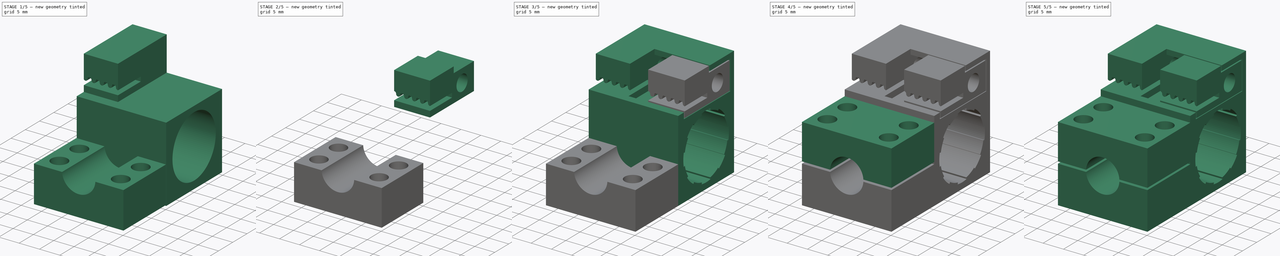
[diagram: build sequence overview — one tinted view per stage of 5, left to right]
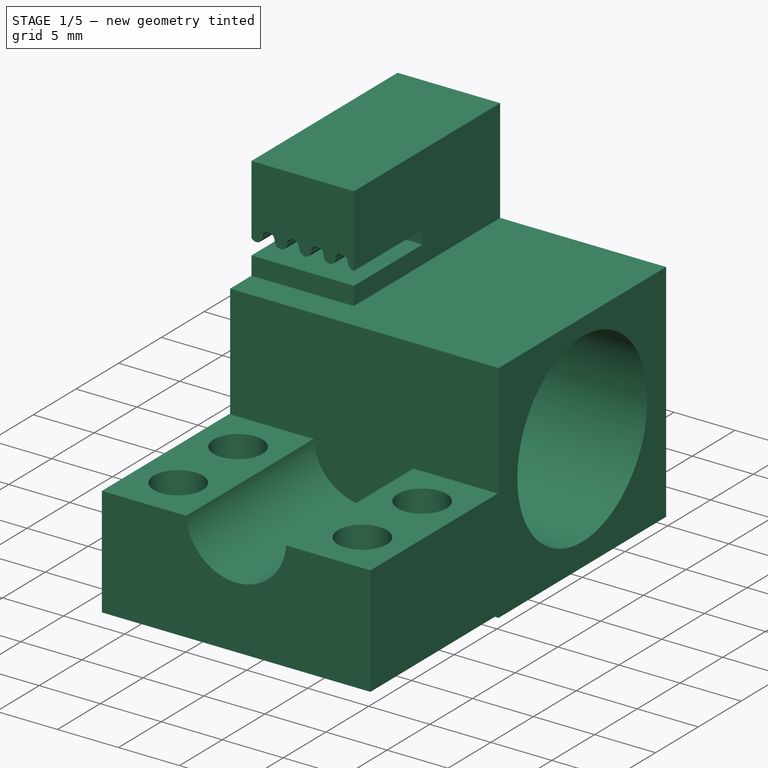
[diagram: stage 1 of 5 — iso view after this stage's code; geometry added in this stage tinted green]
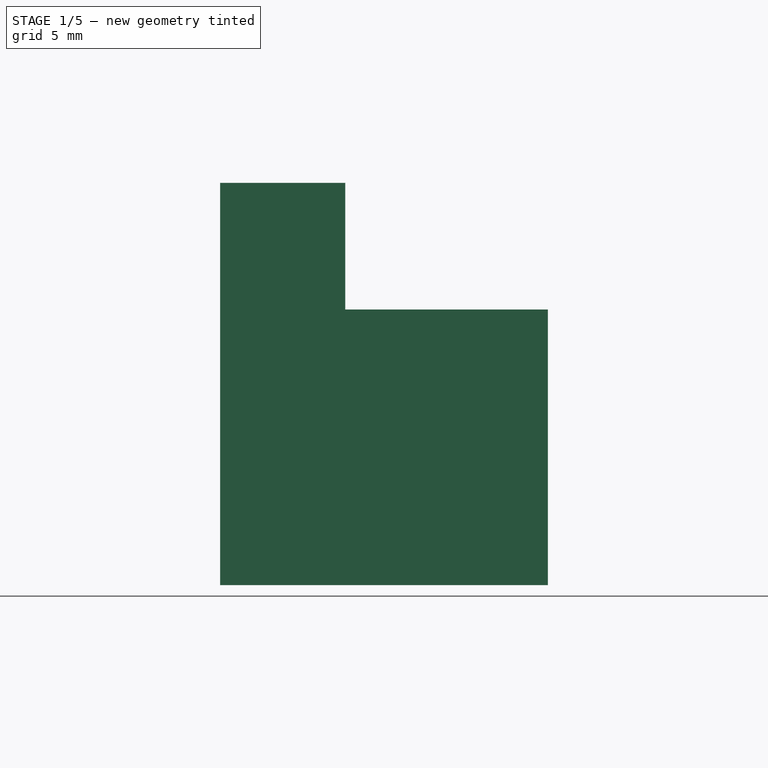
[diagram: stage 1 of 5 — front view after this stage's code; geometry added in this stage tinted green]
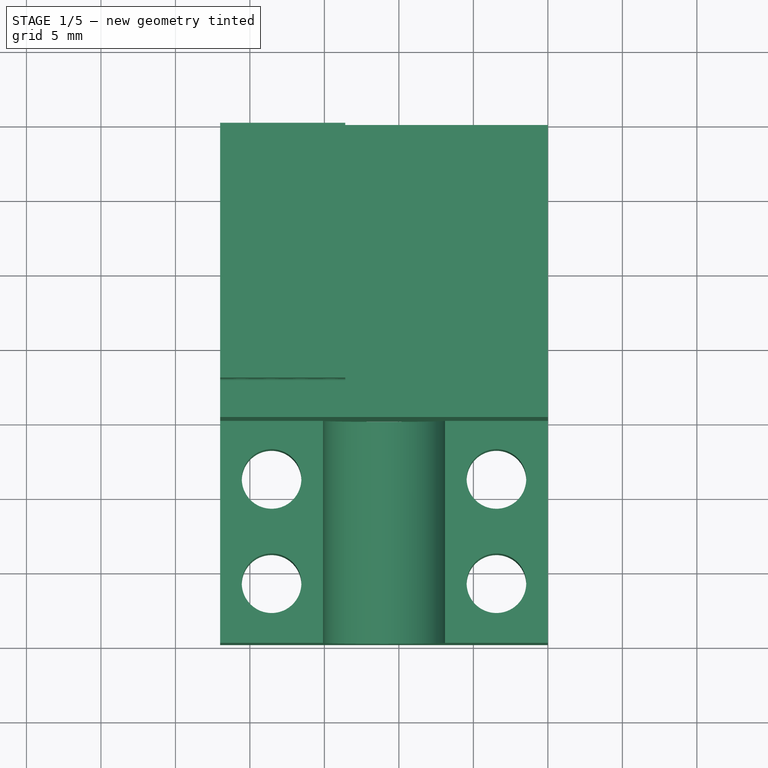
[diagram: stage 1 of 5 — top view after this stage's code; geometry added in this stage tinted green]
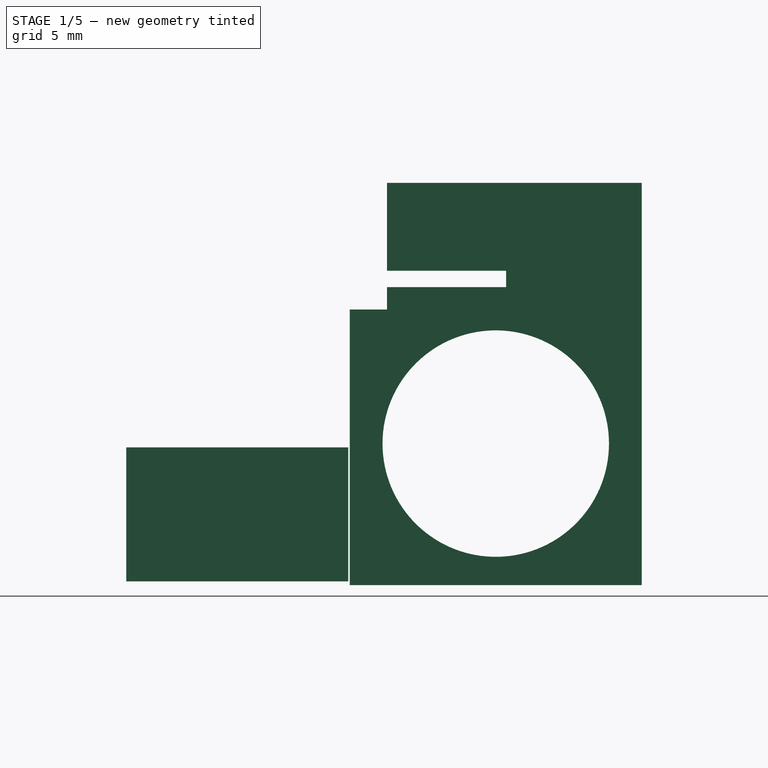
[diagram: stage 1 of 5 — right view after this stage's code; geometry added in this stage tinted green]
FCSTD DOCUMENT  (FreeCAD 0.18.4R)
Label: Axisholder_v2
License: All rights reserved
LicenseURL: http://en.wikipedia.org/wiki/All_rights_reserved
objects: PartDesign::Body×19, Sketcher::SketchObject×17, PartDesign::FeatureBase×14, PartDesign::Pocket×9, PartDesign::Pad×8, PartDesign::Plane×7, PartDesign::ShapeBinder×6, App::Part×6, App::DocumentObjectGroup×3, Part::MultiFuse×2, PartDesign::PolarPattern×1, Spreadsheet::Sheet×1
note: 100 computed .brp shape members not serialized (recipe doc carries the construction recipe); baked Part::Feature solids carry a one-line shape summary decoded from their .brp

FEATURE [Sketcher::SketchObject] Sketch  label="Common_Basepart_Sketch"
  MapMode = 5
  Placement = pos=(0,0,0) rot=(0.57735,0.57735,0.57735;2.0944rad)
  Support = -> [YZ_Plane]
  expr: Constraints[5] = Spreadsheet.B6
  expr: Constraints.block_height = Spreadsheet.B3
  expr: Constraints[13] = Spreadsheet.B4
  expr: Constraints.block_width = Spreadsheet.B2 / 2
  sketch-geometry (7):
    g0: Circle CenterX=0 CenterY=0 CenterZ=0 NormalX=0 NormalY=0 NormalZ=1 AngleXU=0 Radius=7.6
    g1: LineSegment StartX=-9.8 StartY=9 StartZ=0 EndX=9.8 EndY=9 EndZ=0
    g2: LineSegment StartX=9.8 StartY=9 StartZ=0 EndX=9.8 EndY=-9.5 EndZ=0
    g3: LineSegment StartX=9.8 StartY=-9.5 StartZ=0 EndX=-9.8 EndY=-9.5 EndZ=0
    g4: LineSegment StartX=-9.8 StartY=9 StartZ=0 EndX=-9.8 EndY=-9.5 EndZ=0
    g5: LineSegment [constr] StartX=0 StartY=0 StartZ=0 EndX=0 EndY=-9.5 EndZ=0
    g6: LineSegment [constr] StartX=0 StartY=0 StartZ=0 EndX=9.8 EndY=0 EndZ=0
  constraints (19):
    c: Coincident(g0,g-1)
    c: Coincident(g1,g2)
    c: Coincident(g2,g3)
    c: Horizontal(g3)
    c: Vertical(g2)
    c: Radius(g0) = 7.6
    c: Coincident(g1,g4)
    c: Vertical(g4)
    c: Coincident(g4,g3)
    c: Symmetric(g1,g1,g-2)
    c: Coincident(g5,g-1)
    c: PointOnObject(g5,g3)
    c: Vertical(g5)
    c: Distance(g5) = 9.5
    c: Coincident(g6,g-1)
    c: PointOnObject(g6,g2)
    c: DistanceX(g6,g6) = 9.8  'block_width'
    c: Horizontal(g6)
    c: DistanceY(g0,g1) = 9  'block_height'
FEATURE [Sketcher::SketchObject] Sketch002  label="Beltblock"
  ExternalGeometry = -> [Sketch]
  MapMode = 5
  Placement = pos=(-3e-15,5e-15,9) rot=(0,0,-1;1.5708rad)
  expr: Constraints[11] = Spreadsheet.B11
  expr: Constraints[10] = Spreadsheet.B10
  expr: Constraints[8] = Spreadsheet.B8
  expr: Placement.Base.z = Common_Basepart_Sketch.Constraints.block_height
  sketch-geometry (4):
    g0: LineSegment StartX=7.3 StartY=-13.6 StartZ=0 EndX=-9.8 EndY=-13.6 EndZ=0
    g1: LineSegment StartX=-9.8 StartY=-13.6 StartZ=0 EndX=-9.8 EndY=-22 EndZ=0
    g2: LineSegment StartX=-9.8 StartY=-22 StartZ=0 EndX=7.3 EndY=-22 EndZ=0
    g3: LineSegment StartX=7.3 StartY=-13.6 StartZ=0 EndX=7.3 EndY=-22 EndZ=0
  constraints (12):
    c: Coincident(g0,g1)
    c: Coincident(g1,g2)
    c: Horizontal(g0)
    c: Horizontal(g2)
    c: Vertical(g1)
    c: Coincident(g3,g0)
    c: Coincident(g3,g2)
    c: Vertical(g3)
    c: DistanceY(g1,g-3) = 22
    c: Vertical(g0,g-3)
    c: DistanceY(g1,g1) = 8.4
    c: DistanceX(g0,g-3) = 2.5
FEATURE [PartDesign::Pad] Pad  label="Common_Basepart_Pad"
  Length = 22
  Length2 = 100
  Placement = pos=(0,0,0) rot=(0.57735,0.57735,0.57735;2.0944rad)
  Profile = -> Sketch
  Reversed = true
  Type = 0
  expr: Length = Spreadsheet.B8
FEATURE [PartDesign::Pad] Pad001  label="Pad_Beltblock"
  BaseFeature = -> Pad
  Length = 8.5
  Length2 = 100
  Placement = pos=(0,0,0) rot=(0.57735,0.57735,0.57735;2.0944rad)
  Profile = -> Sketch002
  Type = 0
  expr: Length = Spreadsheet.B13
FEATURE [Sketcher::SketchObject] Sketch003  label="Belt_Cutout"
  ExternalGeometry = -> [Pad001,Sketch,Sketch002]
  MapMode = 5
  Placement = pos=(2e-15,-7.3,4e-15) rot=(0.57735,0.57735,-0.57735;2.0944rad)
  expr: Constraints[46] = Spreadsheet.B17
  expr: Constraints[13] = Spreadsheet.B15
  expr: Constraints[12] = Spreadsheet.B16
  sketch-geometry (13):
    g0: LineSegment [constr] StartX=-12.1 StartY=-22 StartZ=0 EndX=-12.1 EndY=-13.1 EndZ=0
    g1: LineSegment StartX=-10.5 StartY=-22 StartZ=0 EndX=-10.5 EndY=-13.6 EndZ=0
    g2: ArcOfCircle CenterX=-12.1 CenterY=-21.6 CenterZ=0 NormalX=0 NormalY=0 NormalZ=1 AngleXU=0 Radius=0.5 StartAngle=5.35589 EndAngle=7.85398
    g3: ArcOfCircle CenterX=-12.1 CenterY=-20.6 CenterZ=0 NormalX=0 NormalY=0 NormalZ=1 AngleXU=0 Radius=0.5 StartAngle=1.5708 EndAngle=4.71239
    g4: ArcOfCircle CenterX=-12.1 CenterY=-19.6 CenterZ=0 NormalX=0 NormalY=0 NormalZ=1 AngleXU=0 Radius=0.5 StartAngle=4.71239 EndAngle=7.85398
    g5: ArcOfCircle CenterX=-12.1 CenterY=-18.6 CenterZ=0 NormalX=0 NormalY=0 NormalZ=1 AngleXU=0 Radius=0.5 StartAngle=1.5708 EndAngle=4.71239
    g6: ArcOfCircle CenterX=-12.1 CenterY=-17.6 CenterZ=0 NormalX=0 NormalY=0 NormalZ=1 AngleXU=0 Radius=0.5 StartAngle=4.71239 EndAngle=7.85398
    g7: ArcOfCircle CenterX=-12.1 CenterY=-16.6 CenterZ=0 NormalX=0 NormalY=0 NormalZ=1 AngleXU=0 Radius=0.5 StartAngle=1.5708 EndAngle=4.71239
    g8: ArcOfCircle CenterX=-12.1 CenterY=-15.6 CenterZ=0 NormalX=0 NormalY=0 NormalZ=1 AngleXU=0 Radius=0.5 StartAngle=4.71239 EndAngle=7.85398
    g9: ArcOfCircle CenterX=-12.1 CenterY=-14.6 CenterZ=0 NormalX=0 NormalY=0 NormalZ=1 AngleXU=0 Radius=0.5 StartAngle=1.5708 EndAngle=4.71239
    g10: ArcOfCircle CenterX=-12.1 CenterY=-13.6 CenterZ=0 NormalX=0 NormalY=0 NormalZ=1 AngleXU=0 Radius=0.5 StartAngle=4.71239 EndAngle=6.28319
    g11: LineSegment StartX=-11.8 StartY=-22 StartZ=0 EndX=-10.5 EndY=-22 EndZ=0
    g12: LineSegment StartX=-10.5 StartY=-13.6 StartZ=0 EndX=-11.6 EndY=-13.6 EndZ=0
  constraints (42):
    c: Coincident(g2,g3)
    c: Coincident(g3,g4)
    c: Coincident(g4,g5)
    c: Coincident(g5,g6)
    c: Coincident(g6,g7)
    c: Coincident(g7,g8)
    c: Coincident(g9,g8)
    c: Coincident(g10,g9)
    c: Coincident(g2,g11)
    c: Coincident(g12,g10)
    c: Coincident(g11,g1)
    c: Coincident(g1,g12)
    c: DistanceX(g12,g12) = 1.1
    c: Radius(g2) = 0.5
    c: Equal(g2, g3-g10) x8
    c: Horizontal(g12)
    c: Horizontal(g11)
    c: PointOnObject(g2,g0)
    c: PointOnObject(g3,g0)
    c: PointOnObject(g4,g0)
    c: PointOnObject(g5,g0)
    c: PointOnObject(g6,g0)
    c: PointOnObject(g7,g0)
    c: PointOnObject(g8,g0)
    c: PointOnObject(g9,g0)
    c: Vertical(g0)
    c: PointOnObject(g-6,g12)
    c: PointOnObject(g9,g0)
    c: PointOnObject(g8,g0)
    c: PointOnObject(g7,g0)
    c: PointOnObject(g6,g0)
    c: PointOnObject(g5,g0)
    c: PointOnObject(g4,g0)
    c: PointOnObject(g3,g0)
    c: PointOnObject(g2,g0)
    c: PointOnObject(g0,g11)
    c: Vertical(g1)
    c: PointOnObject(g-4,g11)
    c: PointOnObject(g10,g0)
    c: DistanceX(g1,g-6) = 1.5
    c: PointOnObject(g10,g12)
    c: DistanceY(g10,g0) = 0.5
FEATURE [PartDesign::Pocket] Pocket  label="Belt_Cutout_Pocket"
  BaseFeature = -> Pad001
  Length = 8
  Length2 = 100
  Placement = pos=(0,0,0) rot=(0.57735,0.57735,0.57735;2.0944rad)
  Profile = -> Sketch003
  Type = 0
  expr: Length = Spreadsheet.B19
FEATURE [PartDesign::Body] Body012  label="AxisHolder_Y"
  Group = -> [ShapeBinder006,DatumPlane011,Sketch033,Pad015,Sketch034,Pocket016]
  Origin = -> Origin023
  Tip = -> Pocket016
FEATURE [Spreadsheet::Sheet] Spreadsheet  label="Spreadsheet_EditHere"
  cells = A1=Name; B1=Value; C1=Comment; A2=Common_Basepart_Width; B2=19.6; A3=Common_Basepart_Heigth1; B3=9; A4=Common_Basepart_Heigth2; B4=9.5; A5=Common_Basepart_Heigth; B5==B3 + B4; C5=Calculated from above cells; A6=Common_Basepart_Igus_Radius; B6=7.6; A8=Common_Basepart_Padlength; B8=22; A10=Beltblock_Width; B10=8.4; A11=Beltblock_Führung_Width; B11=2.5; A13=Beltblock_Pad_Length; B13=8.5; A15=CutoutBelt_Radius_Belt; B15=0.5; A16=CutoutBelt_Thickness_Belt; B16=1.1; A17=CutoutBelt_Distance_From_Bottom; B17=1.5; A19=CutoutBelt_Pocket_Length; B19=8; A21=Guidance_Block_Thickness; B21=1.25; A22=Guidance_Block_Top_Length; B22=8.5; A24=BeltTightenerScrew_Baseblock_Diameter; B24=4; C24=Diameter of the screw in the baseblock; A25=BeltTightenerScrew_Bushing_Diameter; B25==B24; C25=Bushing Diameter in the movavle belttightener; A27=IGUS_Cutback; B27=0.4; A28=IGUS_Cutback_Angle_Degree; B28=22.5; C28=Unit: Degree; A29=IGUS_Number_Cutbacks; B29==360 / (2 * B28); A31=GuidanceBlock_Clearance; B31=0.5; A33=**AxisHolder Dimensions**; A34=Axis Diameter; B34=8.199999999999999; A35=Clamping Cutback; B35=0.25; A37=Axisholder Main Pad Length; B37=15; A39=Axisholder_Screwhole_Diameter; B39=4; C39=If using bushings, your bushing diameter; A40=Axisholder_ScrewDisatance1; B40=4; C40=From the base block; A41=Axisholder_ScrewDisatance2; B41=4; C41=From the edge of the holder; A43=**CLAMP**; A44=Clamp_Distance_Baseblock; B44=0.1; C44=Distance between base block and clamp#; A45=Clamp_Thickness; B45==B3; C45=Can be smaller to adapt to used screw; A46=Clamp_Screwhead_Diameter; B46=6; A47=Clamp_Screwhead_Thickness; B47=2.5; A49=** BeltTightener**; A50=Tolerances_Bottom; B50=0.15; A51=Tolerances_Others; B51==2 * B50; A52=Length; B52=9
FEATURE [PartDesign::ShapeBinder] ShapeBinder  label="Common_Basepart_ShapeBinder_Clamp"
  Placement = pos=(0,0,0) rot=(0.57735,0.57735,0.57735;2.0944rad)
  Support = -> [Sketch]
  TraceSupport = false
FEATURE [PartDesign::Plane] DatumPlane012  label="Common_Basepart_Front_Plus_Tolerance_DP"
  AttachmentOffset = pos=(0,0,9.9) rot=(0,0,1;0rad)
  Length = 37.0596
  MapMode = 5
  Placement = pos=(0,-9.9,-2.2e-15) rot=(1,0,0;1.5708rad)
  ResizeMode = 0
  Support = -> [XZ_Plane026]
  Width = 25.0596
  expr: AttachmentOffset.Base.z = Spreadsheet.B2 / 2 + Spreadsheet.B44
FEATURE [Sketcher::SketchObject] Sketch036  label="Clamp_Base_Sketch"
  MapMode = 5
  Placement = pos=(0,-9.9,-2.2e-15) rot=(1,0,0;1.5708rad)
  Support = -> [DatumPlane012]
  expr: Constraints[18] = Spreadsheet.B45
  expr: Constraints[16] = Spreadsheet.B8 / 2
  expr: Constraints[9] = Spreadsheet.B34
  expr: Constraints[7] = Spreadsheet.B8
  expr: Constraints[6] = Spreadsheet.B35
  sketch-geometry (6):
    g0: LineSegment StartX=-22 StartY=-0.25 StartZ=0 EndX=-22 EndY=-9.25 EndZ=0
    g1: LineSegment StartX=-22 StartY=-9.25 StartZ=0 EndX=0 EndY=-9.25 EndZ=0
    g2: LineSegment StartX=0 StartY=-9.25 StartZ=0 EndX=0 EndY=-0.25 EndZ=0
    g3: ArcOfCircle CenterX=-11 CenterY=0 CenterZ=0 NormalX=0 NormalY=0 NormalZ=1 AngleXU=0 Radius=4.1 StartAngle=3.20261 EndAngle=6.22217
    g4: LineSegment StartX=-15.0924 StartY=-0.25 StartZ=0 EndX=-22 EndY=-0.25 EndZ=0
    g5: LineSegment StartX=-6.90763 StartY=-0.25 StartZ=0 EndX=0 EndY=-0.25 EndZ=0
  constraints (19):
    c: Coincident(g0,g1)
    c: Coincident(g1,g2)
    c: Horizontal(g1)
    c: Vertical(g0)
    c: Vertical(g2)
    c: PointOnObject(g2,g-2)
    c: DistanceY(g2,g-1) = 0.25
    c: DistanceX(g1,g1) = 22
    c: PointOnObject(g3,g-1)
    c: Diameter(g3) = 8.2
    c: Coincident(g4,g3)
    c: Coincident(g4,g0)
    c: Horizontal(g4)
    c: Coincident(g5,g3)
    c: Coincident(g5,g2)
    c: Horizontal(g5)
    c: DistanceX(g3,g-1) = 11
    c: Horizontal(g3,g3)
    c: DistanceY(g0,g0) = 9
FEATURE [PartDesign::Pad] Pad016  label="Clamp_Base_Pad"
  Length = 14.9
  Length2 = 100
  Placement = pos=(0,-9.9,2.2e-15) rot=(1,0,0;1.5708rad)
  Profile = -> Sketch036
  Type = 0
  expr: Length = Spreadsheet.B37 - Spreadsheet.B44
FEATURE [Sketcher::SketchObject] Sketch037  label="Clamp_Screwholes_Sketch"
  ExternalGeometry = -> [Sketch036]
  MapMode = 5
  Support = -> [XY_Plane026]
  expr: Constraints[26] = Spreadsheet.B40
  expr: Constraints[25] = Spreadsheet.B41
  expr: Constraints[27] = Spreadsheet.B37
  expr: Constraints[14] = Spreadsheet.B39
  expr: Constraints[8] = Spreadsheet.B44
  sketch-geometry (10):
    g0: LineSegment [constr] StartX=-11 StartY=-9.8 StartZ=0 EndX=-11 EndY=-24.8 EndZ=0
    g1: LineSegment [constr] StartX=-22 StartY=-9.8 StartZ=0 EndX=0 EndY=-9.8 EndZ=0
    g2: LineSegment [constr] StartX=0 StartY=-9.8 StartZ=0 EndX=0 EndY=-24.8 EndZ=0
    g3: LineSegment [constr] StartX=0 StartY=-24.8 StartZ=0 EndX=-22 EndY=-24.8 EndZ=0
    g4: LineSegment [constr] StartX=-22 StartY=-24.8 StartZ=0 EndX=-22 EndY=-9.8 EndZ=0
    g5: Circle CenterX=-18.5462 CenterY=-13.8 CenterZ=0 NormalX=0 NormalY=0 NormalZ=1 AngleXU=0 Radius=2
    g6: Circle CenterX=-18.5462 CenterY=-20.8 CenterZ=0 NormalX=0 NormalY=0 NormalZ=1 AngleXU=0 Radius=2
    g7: Circle CenterX=-3.45381 CenterY=-20.8 CenterZ=0 NormalX=0 NormalY=0 NormalZ=1 AngleXU=0 Radius=2
    g8: Circle CenterX=-3.45381 CenterY=-13.8 CenterZ=0 NormalX=0 NormalY=0 NormalZ=1 AngleXU=0 Radius=2
    g9: LineSegment [constr] StartX=-18.5462 StartY=-9.9 StartZ=0 EndX=-18.5462 EndY=-24.8 EndZ=0
  constraints (28):
    c: Vertical(g0)
    c: Coincident(g1,g2)
    c: Coincident(g2,g3)
    c: Coincident(g3,g4)
    c: Coincident(g4,g1)
    c: Horizontal(g1)
    c: Vertical(g2)
    c: Vertical(g4)
    c: DistanceY(g-3,g1) = 0.1
    c: Vertical(g-3,g1)
    c: Vertical(g-4,g2)
    c: PointOnObject(g0,g1)
    c: PointOnObject(g0,g3)
    c: Symmetric(g2,g3,g0)
    c: Diameter(g5) = 4
    c: Equal(g5,g6)
    c: Equal(g5,g7)
    c: Equal(g5,g8)
    c: Symmetric(g8,g5,g0)
    c: Symmetric(g7,g6,g0)
    c: PointOnObject(g9,g-3)
    c: PointOnObject(g9,g3)
    c: Symmetric(g-3,g-3,g9)
    c: PointOnObject(g5,g9)
    c: PointOnObject(g6,g9)
    c: DistanceY(g3,g6) = 4
    c: DistanceY(g5,g1) = 4
    c: DistanceY(g2,g2) = 15
FEATURE [PartDesign::Pocket] Pocket017  label="Clamp_Screwholes_Pocket"
  BaseFeature = -> Pad016
  Length = 5
  Length2 = 100
  Placement = pos=(0,-9.9,2.2e-15) rot=(1,0,0;1.5708rad)
  Profile = -> Sketch037
  Type = 1
FEATURE [PartDesign::Plane] DatumPlane013  label="Clamp_Bottom_Plane"
  AttachmentOffset = pos=(0,0,-9.25) rot=(0,0,1;0rad)
  Length = 38.6741
  MapMode = 5
  Placement = pos=(0,0,-9.25) rot=(0,0,1;0rad)
  ResizeMode = 0
  Support = -> [XY_Plane026]
  Width = 41.4741
  expr: AttachmentOffset.Base.z = -(Spreadsheet.B35 + Spreadsheet.B45)
FEATURE [Sketcher::SketchObject] Sketch038  label="Clamp_Screwsink_Sketch"
  ExternalGeometry = -> [Sketch037]
  MapMode = 5
  Placement = pos=(0,0,-9.25) rot=(0,0,1;0rad)
  Support = -> [DatumPlane013]
  expr: Constraints[4] = Spreadsheet.B46
  sketch-geometry (4):
    g0: Circle CenterX=-18.5462 CenterY=-13.8 CenterZ=0 NormalX=0 NormalY=0 NormalZ=1 AngleXU=0 Radius=3
    g1: Circle CenterX=-18.5462 CenterY=-20.8 CenterZ=0 NormalX=0 NormalY=0 NormalZ=1 AngleXU=0 Radius=3
    g2: Circle CenterX=-3.45381 CenterY=-13.8 CenterZ=0 NormalX=0 NormalY=0 NormalZ=1 AngleXU=0 Radius=3
    g3: Circle CenterX=-3.45381 CenterY=-20.8 CenterZ=0 NormalX=0 NormalY=0 NormalZ=1 AngleXU=0 Radius=3
  constraints (8):
    c: Coincident(g0,g-3)
    c: Coincident(g1,g-5)
    c: Coincident(g2,g-4)
    c: Coincident(g3,g-6)
    c: Diameter(g1) = 6
    c: Equal(g1,g0)
    c: Equal(g1,g2)
    c: Equal(g1,g3)
FEATURE [PartDesign::Pocket] Pocket018  label="Clamp_Screwsink_Pocket"
  BaseFeature = -> Pocket017
  Length = 2.5
  Length2 = 100
  Placement = pos=(0,-9.9,2.2e-15) rot=(1,0,0;1.5708rad)
  Profile = -> Sketch038
  Reversed = true
  Type = 0
  expr: Length = Spreadsheet.B47
FEATURE [PartDesign::Body] Body027  label="Printable_Belt Tightener"
  Group = -> [Clone012]
  Origin = -> Origin044
  Tip = -> Clone012
FEATURE [App::Part] Part004  label="Printable_BeltTightener"
  Group = -> [Body027]
  Origin = -> Origin045
  Placement = pos=(-19.6,0,-14) rot=(0,1,0;-1.5708rad)
  expr: Placement.Base.x = -Spreadsheet.B2
FEATURE [PartDesign::FeatureBase] Clone013
  BaseFeature = -> Body013
FEATURE [PartDesign::Body] Body028  label="Clamp001"
  Group = -> [Clone013]
  Origin = -> Origin046
  Tip = -> Clone013
FEATURE [App::Part] Part005  label="Printable_Clamp"
  Group = -> [Body028]
  Origin = -> Origin047
  Placement = pos=(-44,4,0) rot=(1,0,0;1.5708rad)
  expr: Placement.Base.x = -Spreadsheet.B8
FEATURE [App::DocumentObjectGroup] Gruppe001  label="Printables (Select only one)"
  Group = -> [Part002,Part003,Part004,Part005]
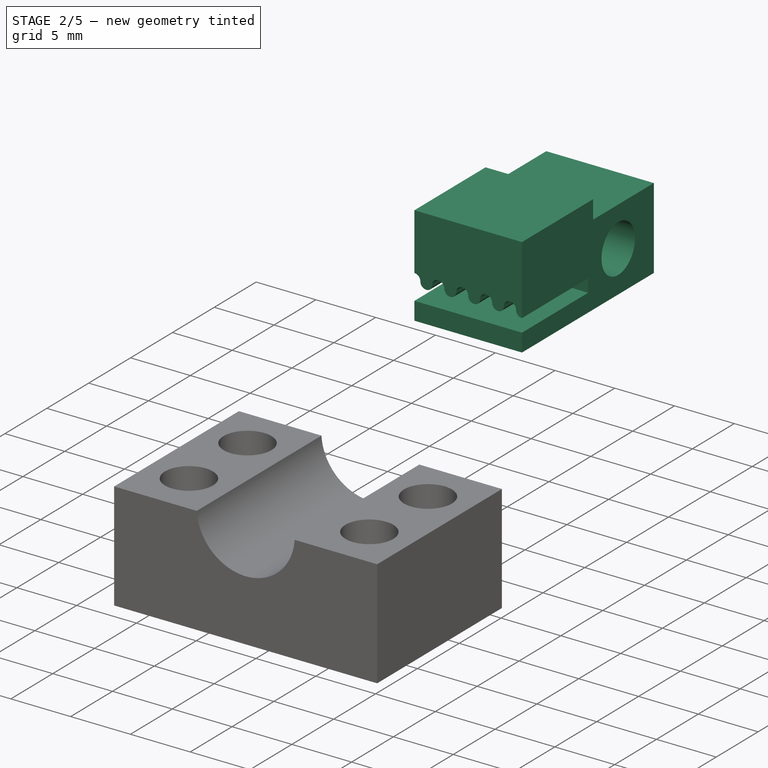
[diagram: stage 2 of 5 — iso view after this stage's code; geometry added in this stage tinted green]
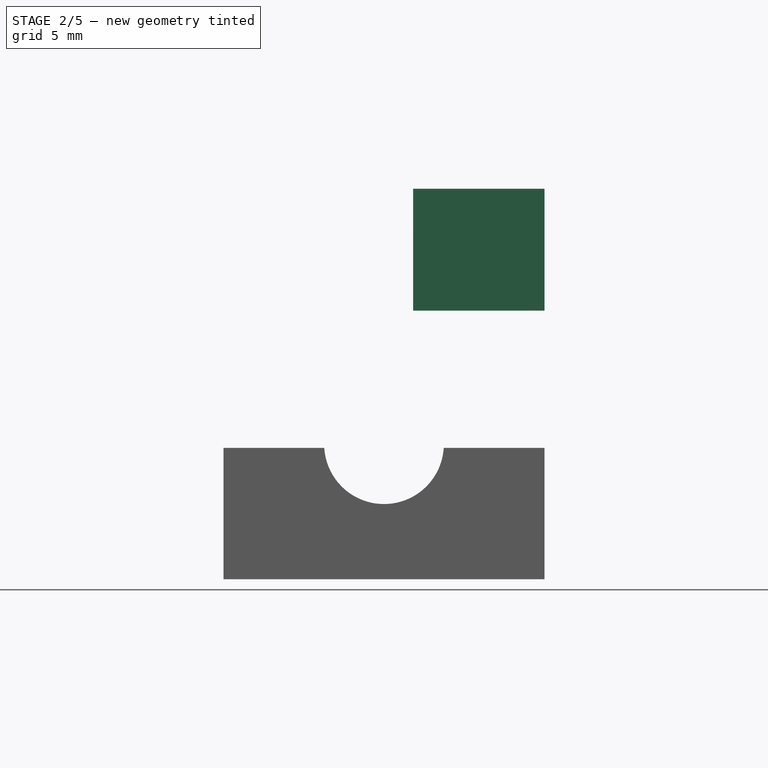
[diagram: stage 2 of 5 — front view after this stage's code; geometry added in this stage tinted green]
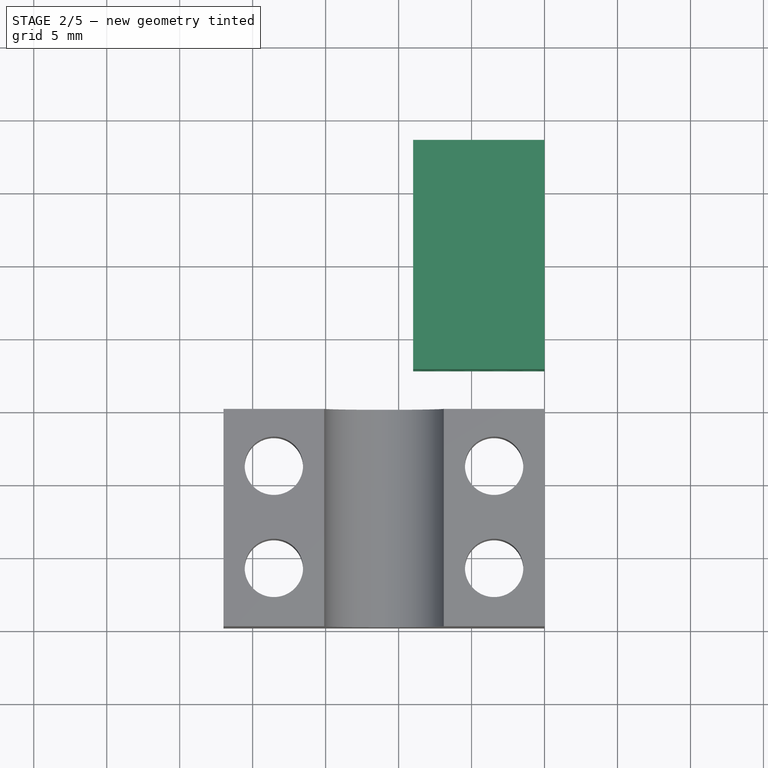
[diagram: stage 2 of 5 — top view after this stage's code; geometry added in this stage tinted green]
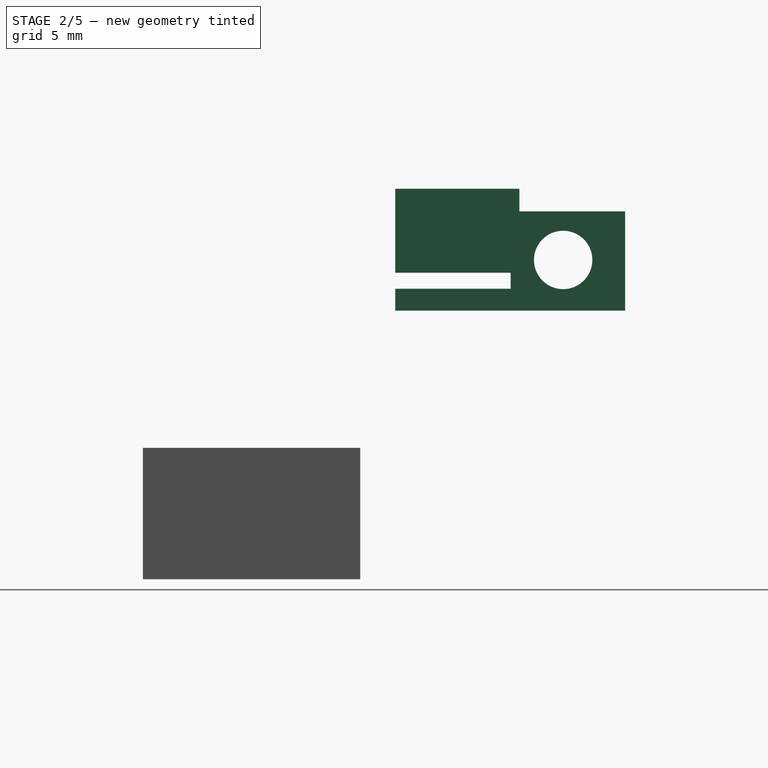
[diagram: stage 2 of 5 — right view after this stage's code; geometry added in this stage tinted green]
FEATURE [PartDesign::Plane] DatumPlane
  Length = 24.6904
  MapMode = 5
  Placement = pos=(0,0,0) rot=(0.57735,0.57735,0.57735;2.0944rad)
  ResizeMode = 0
  Support = -> [YZ_Plane]
  Width = 32.1904
FEATURE [Sketcher::SketchObject] Sketch006  label="IGUS_Single_Cutback_Sketch"
  MapMode = 5
  Placement = pos=(0,0,0) rot=(0.57735,0.57735,0.57735;2.0944rad)
  Support = -> [DatumPlane]
  expr: Constraints[4] = Spreadsheet.B28
  expr: Constraints[7] = Spreadsheet.B6 + Spreadsheet.B27
  expr: Constraints[8] = Spreadsheet.B6 * 0.9
  sketch-geometry (6):
    g0: ArcOfCircle CenterX=0 CenterY=0 CenterZ=0 NormalX=0 NormalY=0 NormalZ=1 AngleXU=0 Radius=8 StartAngle=2.94524 EndAngle=3.33794
    g1: ArcOfCircle CenterX=0 CenterY=0 CenterZ=0 NormalX=0 NormalY=0 NormalZ=1 AngleXU=0 Radius=6.84 StartAngle=2.94524 EndAngle=3.33794
    g2: LineSegment [constr] StartX=0 StartY=0 StartZ=0 EndX=-7.84628 EndY=1.56072 EndZ=0
    g3: LineSegment [constr] StartX=0 StartY=0 StartZ=0 EndX=-7.84628 EndY=-1.56072 EndZ=0
    g4: LineSegment StartX=-6.70857 StartY=-1.33442 StartZ=0 EndX=-7.84628 EndY=-1.56072 EndZ=0
    g5: LineSegment StartX=-6.70857 StartY=1.33442 StartZ=0 EndX=-7.84628 EndY=1.56072 EndZ=0
  constraints (16):
    c: Coincident(g0,g-1)
    c: Coincident(g1,g-1)
    c: Coincident(g2,g-1)
    c: Coincident(g3,g-1)
    c: Angle(g2,g3) = 0.392699
    c: Coincident(g0,g2)
    c: Coincident(g0,g3)
    c: Radius(g0) = 8
    c: Radius(g1) = 6.84
    c: Coincident(g4,g1)
    c: Coincident(g4,g0)
    c: Coincident(g5,g1)
    c: Coincident(g5,g0)
    c: PointOnObject(g1,g3)
    c: Symmetric(g1,g1,g-1)
    c: PointOnObject(g1,g2)
FEATURE [Sketcher::SketchObject] Sketch004  label="Guidance_Block_Sketch"
  ExternalGeometry = -> [Pocket]
  MapMode = 5
  Placement = pos=(0,0,0) rot=(0.57735,0.57735,0.57735;2.0944rad)
  Support = -> [DatumPlane]
  expr: Constraints[16] = Spreadsheet.B22
  expr: Constraints[12] = Spreadsheet.B21
  expr: Constraints[14] = Spreadsheet.B13
  sketch-geometry (6):
    g0: LineSegment StartX=9.8 StartY=17.5 StartZ=0 EndX=1.3 EndY=17.5 EndZ=0
    g1: LineSegment StartX=8.55 StartY=9 StartZ=0 EndX=9.8 EndY=9 EndZ=0
    g2: LineSegment StartX=9.8 StartY=9 StartZ=0 EndX=9.8 EndY=17.5 EndZ=0
    g3: LineSegment StartX=1.3 StartY=17.5 StartZ=0 EndX=1.3 EndY=16.25 EndZ=0
    g4: LineSegment StartX=1.3 StartY=16.25 StartZ=0 EndX=8.55 EndY=16.25 EndZ=0
    g5: LineSegment StartX=8.55 StartY=16.25 StartZ=0 EndX=8.55 EndY=9 EndZ=0
  constraints (17):
    c: Coincident(g1,g2)
    c: Coincident(g2,g0)
    c: Horizontal(g0)
    c: Horizontal(g1)
    c: Vertical(g2)
    c: Coincident(g0,g3)
    c: Vertical(g3)
    c: Coincident(g3,g4)
    c: Horizontal(g4)
    c: Vertical(g5)
    c: Coincident(g1,g5)
    c: Coincident(g5,g4)
    c: DistanceX(g1,g1) = 1.25
    c: Coincident(g1,g-3)
    c: DistanceY(g2,g2) = 8.5
    c: Equal(g3,g1)
    c: DistanceX(g0,g0) = 8.5
FEATURE [PartDesign::Pad] Pad002  label="Guidance_Block_Pad"
  BaseFeature = -> Pocket
  Length = 13.6
  Length2 = 100
  Offset = 10
  Placement = pos=(0,0,0) rot=(0.57735,0.57735,0.57735;2.0944rad)
  Profile = -> Sketch004
  Reversed = true
  Type = 0
  expr: Length = Spreadsheet.B8 - Spreadsheet.B10
FEATURE [Sketcher::SketchObject] Sketch005  label="Screwhole_Belttightener_Sketch"
  ExternalGeometry = -> [Sketch002,Sketch004]
  MapMode = 5
  Placement = pos=(0,0,0) rot=(0.57735,0.57735,0.57735;2.0944rad)
  Support = -> [DatumPlane]
  expr: Constraints[4] = (Spreadsheet.B2 - Spreadsheet.B11 - Spreadsheet.B19) / 2
  expr: Constraints[2] = Spreadsheet.B21
  expr: Constraints[1] = Spreadsheet.B24 / 2
  sketch-geometry (2):
    g0: Circle CenterX=4 CenterY=12.625 CenterZ=0 NormalX=0 NormalY=0 NormalZ=1 AngleXU=0 Radius=2
    g1: LineSegment [constr] StartX=4 StartY=12.625 StartZ=0 EndX=8.55 EndY=12.625 EndZ=0
  constraints (5):
    c: Coincident(g1,g0)
    c: Radius(g0) = 2
    c: DistanceX(g1,g-3) = 1.25
    c: Symmetric(g-4,g-4,g1)
    c: Distance(g1) = 4.55
FEATURE [PartDesign::Pocket] Pocket001  label="Screwhole_Belttightener_Pocket"
  BaseFeature = -> Pad002
  Length = 5
  Length2 = 100
  Placement = pos=(0,0,0) rot=(0.57735,0.57735,0.57735;2.0944rad)
  Profile = -> Sketch005
  Type = 1
FEATURE [PartDesign::Pocket] Pocket002  label="IGUS_Single_Cutback_Pocket"
  BaseFeature = -> Pocket001
  Length = 5
  Length2 = 100
  Placement = pos=(0,0,0) rot=(0.57735,0.57735,0.57735;2.0944rad)
  Profile = -> Sketch006
  Type = 1
FEATURE [PartDesign::PolarPattern] PolarPattern  label="PolarPattern_IGUS_CutBack"
  Angle = 360
  Axis = -> X_Axis
  BaseFeature = -> Pocket002
  Occurrences = 8
  Originals = -> [Pocket002]
  Placement = pos=(0,0,0) rot=(0.57735,0.57735,0.57735;2.0944rad)
  expr: Occurrences = Spreadsheet.B29
FEATURE [PartDesign::ShapeBinder] ShapeBinder002  label="ShapeBinder_GuidanceBlock"
  Placement = pos=(0,0,0) rot=(0.57735,0.57735,0.57735;2.0944rad)
  Support = -> [Sketch004]
  TraceSupport = false
FEATURE [PartDesign::ShapeBinder] ShapeBinder003  label="ShapeBinder_Guidance_Belttightener"
  Placement = pos=(0,0,9) rot=(0,0,1;0rad)
  Support = -> [Sketch010]
  TraceSupport = false
FEATURE [PartDesign::ShapeBinder] ShapeBinder004  label="ShapeBinder_Screwhole"
  Placement = pos=(0,0,0) rot=(0.57735,0.57735,0.57735;2.0944rad)
  Support = -> [Sketch005]
  TraceSupport = false
FEATURE [Sketcher::SketchObject] Sketch027  label="BT_Base_Sketch"
  ExternalGeometry = -> [ShapeBinder002,ShapeBinder003,ShapeBinder004]
  MapMode = 5
  Placement = pos=(0,0,0) rot=(0.57735,0.57735,0.57735;2.0944rad)
  Support = -> [YZ_Plane019]
  expr: Constraints[14] = Spreadsheet.B51
  expr: Constraints[12] = Spreadsheet.B51
  expr: Constraints[11] = Spreadsheet.B51
  expr: Constraints[16] = Spreadsheet.B51
  expr: Constraints[10] = Spreadsheet.B50
  expr: Constraints[18] = Spreadsheet.B25 / 2
  sketch-geometry (7):
    g0: LineSegment StartX=8.25 StartY=9.15 StartZ=0 EndX=8.25 EndY=15.95 EndZ=0
    g1: LineSegment StartX=8.25 StartY=15.95 StartZ=0 EndX=1 EndY=15.95 EndZ=0
    g2: LineSegment StartX=1 StartY=15.95 StartZ=0 EndX=1 EndY=17.5 EndZ=0
    g3: LineSegment StartX=1 StartY=17.5 StartZ=0 EndX=-7.5 EndY=17.5 EndZ=0
    g4: LineSegment StartX=-7.5 StartY=17.5 StartZ=0 EndX=-7.5 EndY=9.15 EndZ=0
    g5: LineSegment StartX=-7.5 StartY=9.15 StartZ=0 EndX=8.25 EndY=9.15 EndZ=0
    g6: Circle CenterX=4 CenterY=12.625 CenterZ=0 NormalX=0 NormalY=0 NormalZ=1 AngleXU=0 Radius=2
  constraints (20):
    c: Vertical(g0)
    c: Coincident(g0,g1)
    c: Coincident(g1,g2)
    c: Vertical(g2)
    c: Coincident(g2,g3)
    c: Horizontal(g3)
    c: Coincident(g3,g4)
    c: Coincident(g4,g5)
    c: Coincident(g5,g0)
    c: Horizontal(g5)
    c: DistanceY(g-4,g0) = 0.15
    c: DistanceX(g0,g-5) = 0.3
    c: DistanceY(g0,g-5) = 0.3
    c: Horizontal(g1)
    c: DistanceX(g2,g-7) = 0.3
    c: Vertical(g4)
    c: DistanceX(g-6,g4) = 0.3
    c: Coincident(g6,g-8)
    c: Radius(g6) = 2
    c: Horizontal(g-7,g2)
FEATURE [PartDesign::Pad] Pad012  label="BT_Base_Pad"
  Length = 9
  Length2 = 100
  Placement = pos=(0,0,0) rot=(0.57735,0.57735,0.57735;2.0944rad)
  Profile = -> Sketch027
  Reversed = true
  Type = 0
  expr: Length = Spreadsheet.B52
FEATURE [PartDesign::Body] Body013  label="Clamp"
  Group = -> [ShapeBinder,DatumPlane012,Sketch036,Pad016,Sketch037,Pocket017,DatumPlane013,Sketch038,Pocket018]
  Origin = -> Origin026
  Tip = -> Pocket018
FEATURE [PartDesign::Plane] DatumPlane014  label="DatumPlane_Front_BT"
  AttachmentOffset = pos=(0,0,17.4) rot=(0,0,-1;1.5708rad)
  Length = 32.1904
  MapMode = 7
  Placement = pos=(-2.8332e-12,-7.6,17.5) rot=(0.57735,0.57735,-0.57735;2.0944rad)
  ResizeMode = 0
  Support = -> [ShapeBinder002]
  Width = 24.6904
  expr: AttachmentOffset.Base.z = Spreadsheet.B2 - Spreadsheet.B11 + Spreadsheet.B51
FEATURE [Sketcher::SketchObject] Sketch028  label="BT_Cutout_Belt_Sketch"
  ExternalGeometry = -> [Sketch027]
  MapMode = 5
  Placement = pos=(-2.8332e-12,-7.6,17.5) rot=(0.57735,0.57735,-0.57735;2.0944rad)
  Support = -> [DatumPlane014]
  expr: Constraints[7] = Spreadsheet.B15
  expr: Constraints[50] = Spreadsheet.B16
  expr: Constraints[49] = Spreadsheet.B17
  sketch-geometry (14):
    g0: ArcOfCircle CenterX=5.25 CenterY=-8 CenterZ=0 NormalX=0 NormalY=0 NormalZ=1 AngleXU=0 Radius=0.5 StartAngle=4.71239 EndAngle=7.85398
    g1: ArcOfCircle CenterX=5.25 CenterY=-7 CenterZ=0 NormalX=0 NormalY=0 NormalZ=1 AngleXU=0 Radius=0.5 StartAngle=1.5708 EndAngle=4.71239
    g2: ArcOfCircle CenterX=5.25 CenterY=-6 CenterZ=0 NormalX=0 NormalY=0 NormalZ=1 AngleXU=0 Radius=0.5 StartAngle=4.71239 EndAngle=7.85398
    g3: ArcOfCircle CenterX=5.25 CenterY=-5 CenterZ=0 NormalX=0 NormalY=0 NormalZ=1 AngleXU=0 Radius=0.5 StartAngle=1.5708 EndAngle=4.71239
    g4: ArcOfCircle CenterX=5.25 CenterY=-4 CenterZ=0 NormalX=0 NormalY=0 NormalZ=1 AngleXU=0 Radius=0.5 StartAngle=4.71239 EndAngle=7.85398
    g5: ArcOfCircle CenterX=5.25 CenterY=-3 CenterZ=0 NormalX=0 NormalY=0 NormalZ=1 AngleXU=0 Radius=0.5 StartAngle=1.5708 EndAngle=4.71239
    g6: ArcOfCircle CenterX=5.25 CenterY=-2 CenterZ=0 NormalX=0 NormalY=0 NormalZ=1 AngleXU=0 Radius=0.5 StartAngle=4.71239 EndAngle=7.85398
    g7: ArcOfCircle CenterX=5.25 CenterY=-1 CenterZ=0 NormalX=0 NormalY=0 NormalZ=1 AngleXU=0 Radius=0.5 StartAngle=1.5708 EndAngle=4.71239
    g8: LineSegment [constr] StartX=5.25 StartY=-9 StartZ=0 EndX=5.25 EndY=1.0374e-12 EndZ=0
    g9: ArcOfCircle CenterX=5.25 CenterY=1.0374e-12 CenterZ=0 NormalX=0 NormalY=0 NormalZ=1 AngleXU=0 Radius=0.5 StartAngle=4.71239 EndAngle=6.28319
    g10: LineSegment StartX=4.75 StartY=-9 StartZ=0 EndX=6.85 EndY=-9 EndZ=0
    g11: LineSegment StartX=6.85 StartY=-9 StartZ=0 EndX=6.85 EndY=1.0374e-12 EndZ=0
    g12: ArcOfCircle CenterX=5.25 CenterY=-9 CenterZ=0 NormalX=0 NormalY=0 NormalZ=1 AngleXU=0 Radius=0.5 StartAngle=1.5708 EndAngle=3.14159
    g13: LineSegment StartX=6.85 StartY=1.0373e-12 StartZ=0 EndX=5.75 EndY=1.0373e-12 EndZ=0
  constraints (45):
    c: Coincident(g1,g0)
    c: Coincident(g3,g2)
    c: Coincident(g5,g4)
    c: Coincident(g7,g6)
    c: Coincident(g1,g2)
    c: Coincident(g4,g3)
    c: Coincident(g6,g5)
    c: Radius(g0) = 0.5
    c: Equal(g0, g1-g7) x7
    c: Vertical(g8)
    c: PointOnObject(g7,g8)
    c: PointOnObject(g6,g8)
    c: PointOnObject(g5,g8)
    c: PointOnObject(g3,g8)
    c: PointOnObject(g3,g8)
    c: PointOnObject(g4,g8)
    c: PointOnObject(g6,g8)
    c: PointOnObject(g2,g8)
    c: PointOnObject(g2,g8)
    c: PointOnObject(g1,g8)
    c: PointOnObject(g1,g8)
    c: PointOnObject(g0,g8)
    c: PointOnObject(g4,g8)
    c: PointOnObject(g0,g8)
    c: PointOnObject(g5,g8)
    c: Coincident(g7,g9)
    c: PointOnObject(g7,g8)
    c: Coincident(g10,g11)
    c: Vertical(g11)
    c: PointOnObject(g0,g8)
    c: Coincident(g12,g0)
    c: Equal(g0,g12)
    c: Coincident(g13,g11)
    c: Coincident(g13,g9)
    c: Equal(g7,g9)
    c: Coincident(g12,g10)
    c: Coincident(g8,g12)
    c: Coincident(g8,g9)
    c: Horizontal(g13)
    c: Horizontal(g10)
    c: PointOnObject(g9,g13)
    c: PointOnObject(g12,g10)
    c: PointOnObject(g9,g-3)
    c: DistanceX(g11,g-3) = 1.5
    c: DistanceX(g13,g13) = 1.1
FEATURE [PartDesign::Pocket] Pocket012  label="BT_Cutout_Belt"
  BaseFeature = -> Pad012
  Length = 8
  Length2 = 100
  Placement = pos=(0,0,0) rot=(0.57735,0.57735,0.57735;2.0944rad)
  Profile = -> Sketch028
  Type = 0
  expr: Length = Spreadsheet.B19
FEATURE [App::Part] Part003  label="Printable_Axisholder_Y"
  Group = -> [Body025,Body026,Fusion001]
  Origin = -> Origin043
  Placement = pos=(0,0,0) rot=(0,1,0;-1.5708rad)
FEATURE [PartDesign::FeatureBase] Clone012
  BaseFeature = -> Body009
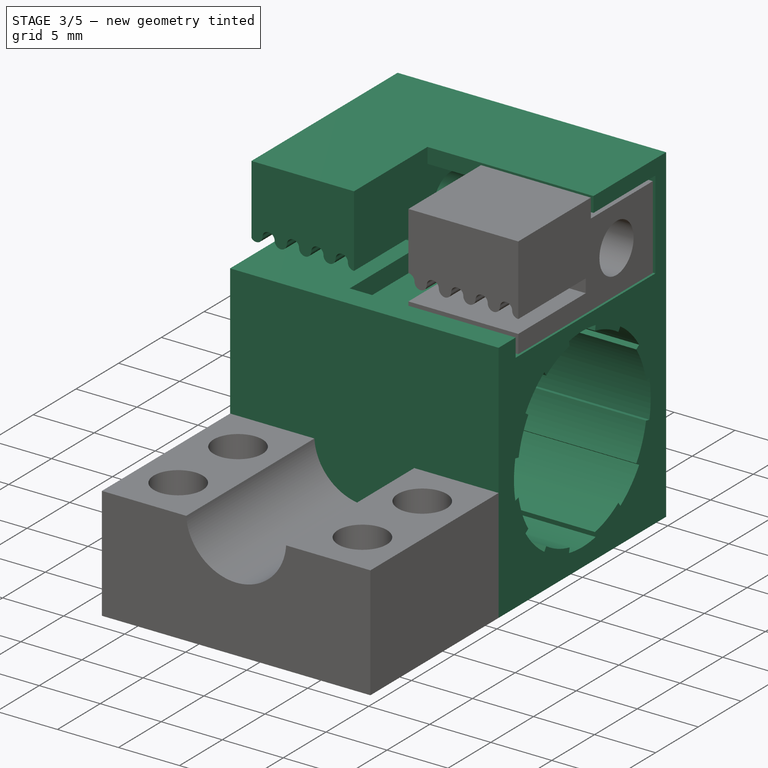
[diagram: stage 3 of 5 — iso view after this stage's code; geometry added in this stage tinted green]
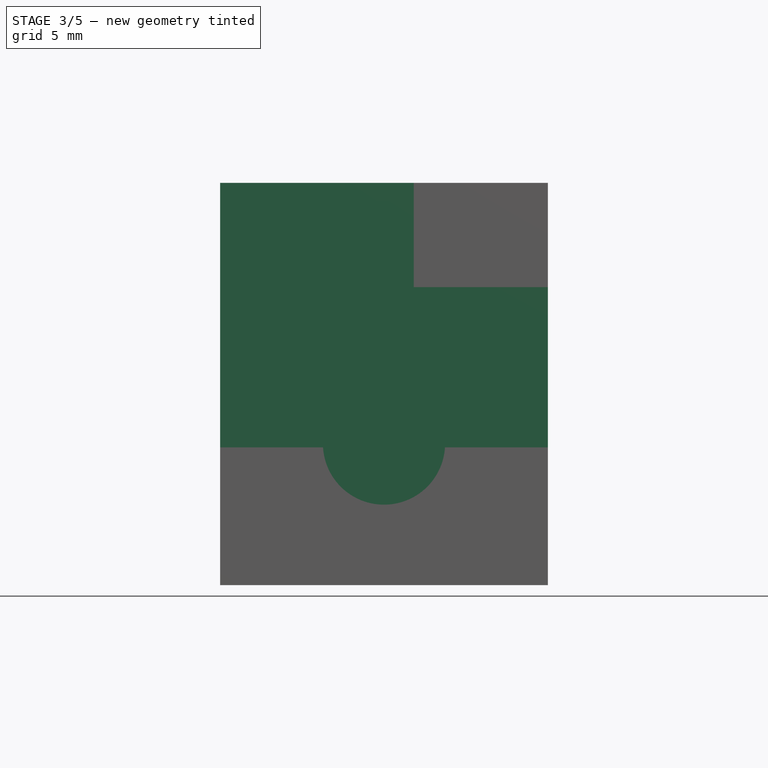
[diagram: stage 3 of 5 — front view after this stage's code; geometry added in this stage tinted green]
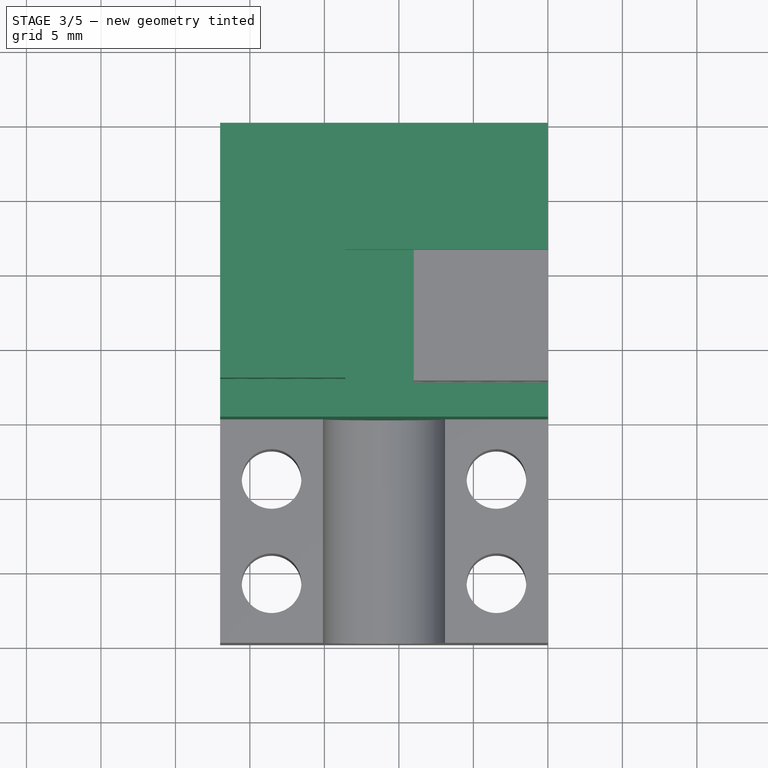
[diagram: stage 3 of 5 — top view after this stage's code; geometry added in this stage tinted green]
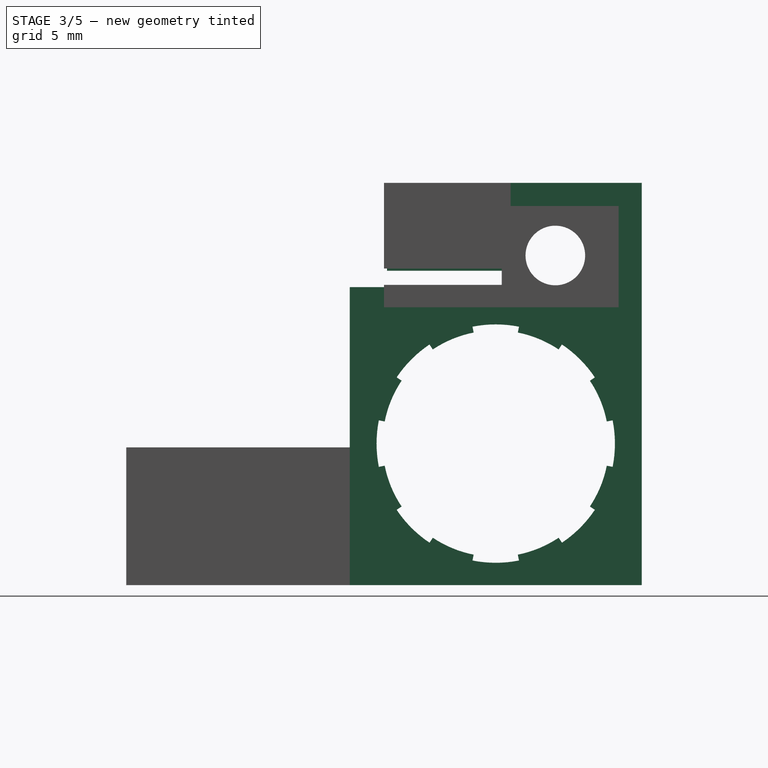
[diagram: stage 3 of 5 — right view after this stage's code; geometry added in this stage tinted green]
FEATURE [PartDesign::Plane] DatumPlane001  label="Datumplane_Top_Commonpart"
  AttachmentOffset = pos=(0,0,9) rot=(0,0,1;0rad)
  Length = 37.0596
  MapMode = 5
  Placement = pos=(0,0,9) rot=(0,0,1;0rad)
  ResizeMode = 0
  Support = -> [XY_Plane]
  Width = 25.0596
  expr: AttachmentOffset.Base.z = Spreadsheet.B3
FEATURE [Sketcher::SketchObject] Sketch010  label="Guidance_Belttightener_Sketch"
  ExternalGeometry = -> [PolarPattern,Sketch002]
  MapMode = 5
  Placement = pos=(0,0,9) rot=(0,0,1;0rad)
  Support = -> [DatumPlane001]
  expr: Constraints[14] = Spreadsheet.B31
  sketch-geometry (6):
    g0: LineSegment StartX=-2.121e-12 StartY=-7.8 StartZ=0 EndX=-13.6 EndY=-7.8 EndZ=0
    g1: LineSegment StartX=-22 StartY=-7.3 StartZ=0 EndX=-22 EndY=-9.8 EndZ=0
    g2: LineSegment StartX=-22 StartY=-9.8 StartZ=0 EndX=-2.121e-12 EndY=-9.8 EndZ=0
    g3: LineSegment StartX=-2.121e-12 StartY=-9.8 StartZ=0 EndX=-2.121e-12 EndY=-7.8 EndZ=0
    g4: LineSegment StartX=-13.6 StartY=-7.8 StartZ=0 EndX=-13.6 EndY=-7.3 EndZ=0
    g5: LineSegment StartX=-13.6 StartY=-7.3 StartZ=0 EndX=-22 EndY=-7.3 EndZ=0
  constraints (15):
    c: Coincident(g1,g2)
    c: Coincident(g2,g3)
    c: Horizontal(g0)
    c: Horizontal(g2)
    c: Vertical(g1)
    c: Coincident(g2,g-3)
    c: Vertical(g3)
    c: Coincident(g0,g3)
    c: Coincident(g4,g5)
    c: Coincident(g4,g0)
    c: Vertical(g4)
    c: Coincident(g1,g5)
    c: Coincident(g1,g-4)
    c: Coincident(g-5,g4)
    c: DistanceY(g4,g4) = 0.5
FEATURE [PartDesign::Pad] Pad004  label="Guidance_Belttightener_Pad"
  BaseFeature = -> PolarPattern
  Length = 1.5
  Length2 = 100
  Placement = pos=(0,0,0) rot=(0.57735,0.57735,0.57735;2.0944rad)
  Profile = -> Sketch010
  Type = 0
  expr: Length = Spreadsheet.B17
FEATURE [PartDesign::Plane] DatumPlane011  label="Common_Basepart_Front_DatumPlane_AHY"
  AttachmentOffset = pos=(0,0,9.8) rot=(0,0,1;1.5708rad)
  Length = 25.0596
  MapMode = 5
  Placement = pos=(0,-9.8,-2.2e-15) rot=(0.57735,-0.57735,0.57735;2.0944rad)
  ResizeMode = 0
  Support = -> [XZ_Plane023]
  Width = 37.0596
  expr: AttachmentOffset.Base.z = Spreadsheet.B2 / 2
FEATURE [PartDesign::ShapeBinder] ShapeBinder006  label="Common_Basepart_ShapeBinder_AHY"
  Placement = pos=(0,0,0) rot=(0.57735,0.57735,0.57735;2.0944rad)
  Support = -> [Sketch]
  TraceSupport = false
FEATURE [Sketcher::SketchObject] Sketch033  label="AHY_Main_Sketch"
  ExternalGeometry = -> [ShapeBinder006]
  MapMode = 5
  Placement = pos=(0,-9.8,-2.2e-15) rot=(0.57735,-0.57735,0.57735;2.0944rad)
  Support = -> [DatumPlane011]
  expr: Constraints[9] = Spreadsheet.B35
  expr: Constraints[12] = Spreadsheet.B34 / 2
  expr: Constraints[16] = Spreadsheet.B8 / 2
  expr: Constraints[8] = Spreadsheet.B8
  sketch-geometry (6):
    g0: LineSegment StartX=-9.5 StartY=-1.0737e-12 StartZ=0 EndX=-0.25 EndY=-1.0737e-12 EndZ=0
    g1: LineSegment StartX=-0.25 StartY=-1.0737e-12 StartZ=0 EndX=-0.25 EndY=6.90763 EndZ=0
    g2: LineSegment StartX=-0.25 StartY=22 StartZ=0 EndX=-9.5 EndY=22 EndZ=0
    g3: LineSegment StartX=-9.5 StartY=22 StartZ=0 EndX=-9.5 EndY=-1.0729e-12 EndZ=0
    g4: LineSegment StartX=-0.25 StartY=15.0924 StartZ=0 EndX=-0.25 EndY=22 EndZ=0
    g5: ArcOfCircle CenterX=0 CenterY=11 CenterZ=0 NormalX=0 NormalY=0 NormalZ=1 AngleXU=0 Radius=4.1 StartAngle=1.63181 EndAngle=4.65138
  constraints (17):
    c: Coincident(g0,g1)
    c: Coincident(g4,g2)
    c: Coincident(g2,g3)
    c: Horizontal(g0)
    c: Horizontal(g2)
    c: Vertical(g1)
    c: Vertical(g3)
    c: Tangent(g1,g4)
    c: DistanceY(g0,g2) = 22
    c: DistanceX(g2,g-1) = 0.25
    c: Coincident(g0,g-3)
    c: Coincident(g0,g3)
    c: Radius(g5) = 4.1
    c: Coincident(g5,g4)
    c: Coincident(g5,g1)
    c: PointOnObject(g5,g-2)
    c: DistanceY(g5,g2) = 11
FEATURE [Sketcher::SketchObject] Sketch034  label="AHY_Screwholes_Sketch"
  ExternalGeometry = -> [Sketch033]
  MapMode = 5
  Support = -> [XY_Plane023]
  expr: Constraints.bushing_diameter_pressin = Spreadsheet.B39 / 2
  expr: Constraints.distance_hole2 = Spreadsheet.B40
  expr: Constraints.distance_hole1 = Spreadsheet.B41
  expr: Constraints[5] = Spreadsheet.B37
  sketch-geometry (8):
    g0: Circle CenterX=-18.5462 CenterY=-13.8 CenterZ=0 NormalX=0 NormalY=0 NormalZ=1 AngleXU=0 Radius=2
    g1: Circle CenterX=-3.45381 CenterY=-13.8 CenterZ=0 NormalX=0 NormalY=0 NormalZ=1 AngleXU=0 Radius=2
    g2: Circle CenterX=-3.45381 CenterY=-20.8 CenterZ=0 NormalX=0 NormalY=0 NormalZ=1 AngleXU=0 Radius=2
    g3: Circle CenterX=-18.5462 CenterY=-20.8 CenterZ=0 NormalX=0 NormalY=0 NormalZ=1 AngleXU=0 Radius=2
    g4: LineSegment [constr] StartX=1.0443e-12 StartY=-17.3 StartZ=0 EndX=-22 EndY=-17.3 EndZ=0
    g5: LineSegment [constr] StartX=1.0736e-12 StartY=-9.8 StartZ=0 EndX=1.0123e-12 EndY=-24.8 EndZ=0
    g6: LineSegment [constr] StartX=-18.5462 StartY=-9.8 StartZ=0 EndX=-18.5462 EndY=-17.3 EndZ=0
    g7: LineSegment [constr] StartX=-11 StartY=-17.3 StartZ=0 EndX=-11 EndY=-24.8 EndZ=0
  constraints (22):
    c: Radius(g3) = 2  'bushing_diameter_pressin'
    c: Equal(g3,g2)
    c: Equal(g3,g1)
    c: Equal(g3,g0)
    c: Horizontal(g2,g3)
    c: DistanceY(g5,g5) = 15
    c: Coincident(g-3,g5)
    c: PointOnObject(g4,g5)
    c: Vertical(g4,g-4)
    c: Symmetric(g5,g5,g4)
    c: DistanceY(g1,g5) = 4  'distance_hole2'
    c: DistanceY(g5,g2) = 4  'distance_hole1'
    c: PointOnObject(g6,g-4)
    c: PointOnObject(g6,g4)
    c: Symmetric(g-4,g-4,g6)
    c: PointOnObject(g0,g6)
    c: PointOnObject(g3,g6)
    c: PointOnObject(g7,g4)
    c: Horizontal(g7,g5)
    c: Symmetric(g4,g4,g7)
    c: Symmetric(g3,g2,g7)
    c: Symmetric(g0,g1,g7)
FEATURE [PartDesign::Pad] Pad015  label="AHY_Main_Pad"
  Length = 15
  Length2 = 100
  Placement = pos=(0,-9.8,-2e-15) rot=(0.57735,-0.57735,0.57735;2.0944rad)
  Profile = -> Sketch033
  Type = 0
  expr: Length = Spreadsheet.B37
FEATURE [PartDesign::Pocket] Pocket016  label="AHY_Screwholes_Pocket"
  BaseFeature = -> Pad015
  Length = 5
  Length2 = 100
  Placement = pos=(0,-9.8,-2e-15) rot=(0.57735,-0.57735,0.57735;2.0944rad)
  Profile = -> Sketch034
  Type = 1
FEATURE [PartDesign::Body] Body015
  BaseFeature = -> Body014
  Group = -> [Clone]
  Origin = -> Origin029
  Tip = -> Clone
FEATURE [PartDesign::FeatureBase] Clone003
  BaseFeature = -> Body012
FEATURE [PartDesign::Body] Body022
  BaseFeature = -> Body013
  Group = -> [Clone007]
  Origin = -> Origin037
  Placement = pos=(-22,0,-0.25) rot=(0,1,0;3.14159rad)
  Tip = -> Clone007
  expr: Placement.Base.z = -Spreadsheet.B35
FEATURE [Sketcher::SketchObject] Sketch041  label="SetScrew_IGUS_Sketch"
  AttachmentOffset = pos=(0,0,-9.5) rot=(0,0,1;0rad)
  MapMode = 5
  Placement = pos=(0,0,-9.5) rot=(0,0,1;0rad)
  Support = -> [XY_Plane]
  expr: Constraints[1] = Spreadsheet.B8 / 2
  expr: AttachmentOffset.Base.z = -Spreadsheet.B4
  sketch-geometry (1):
    g0: Circle CenterX=-11 CenterY=0 CenterZ=0 NormalX=0 NormalY=0 NormalZ=1 AngleXU=0 Radius=1.3
  constraints (3):
    c: PointOnObject(g0,g-1)
    c: DistanceX(g0,g-1) = 11
    c: Diameter(g0) = 2.6
FEATURE [PartDesign::Pocket] Pocket020  label="SetScrew_IGUS"
  BaseFeature = -> Pad004
  Length = 5
  Length2 = 100
  Placement = pos=(0,0,0) rot=(0.57735,0.57735,0.57735;2.0944rad)
  Profile = -> Sketch041
  Reversed = true
  Type = 0
FEATURE [PartDesign::Body] Body025
  Group = -> [Clone010]
  Origin = -> Origin041
  Tip = -> Clone010
FEATURE [PartDesign::FeatureBase] Clone011
  BaseFeature = -> Body018
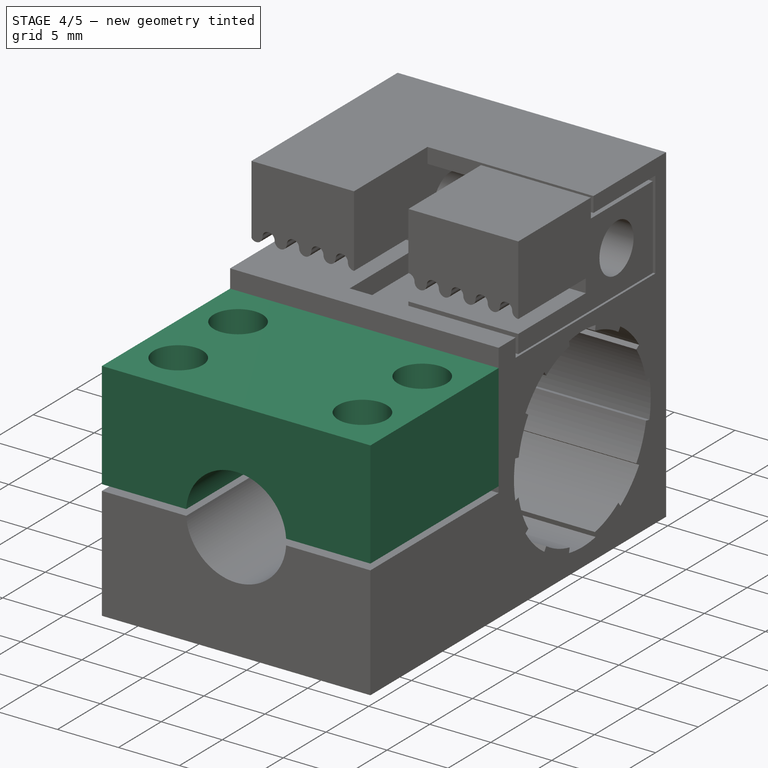
[diagram: stage 4 of 5 — iso view after this stage's code; geometry added in this stage tinted green]
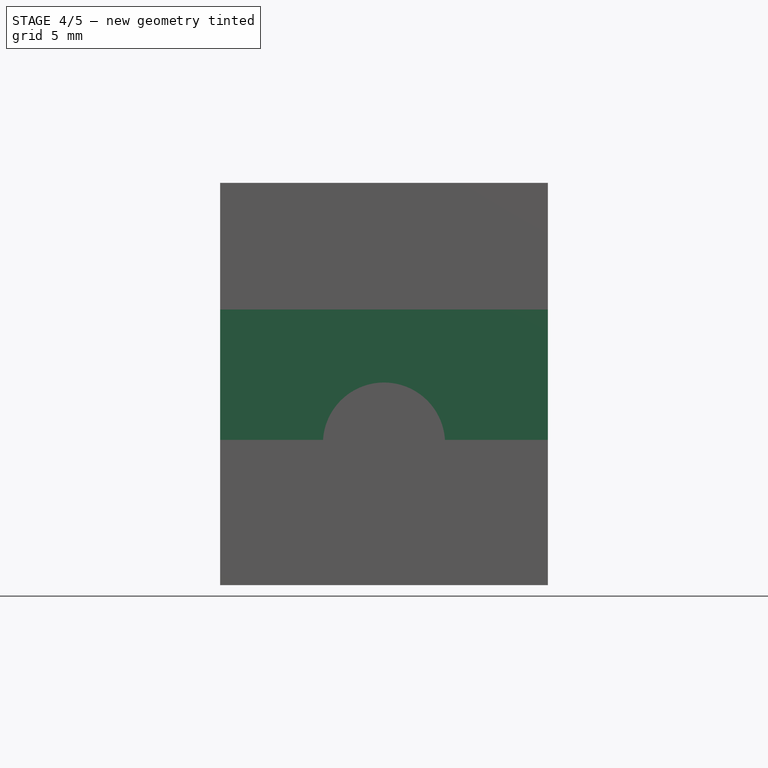
[diagram: stage 4 of 5 — front view after this stage's code; geometry added in this stage tinted green]
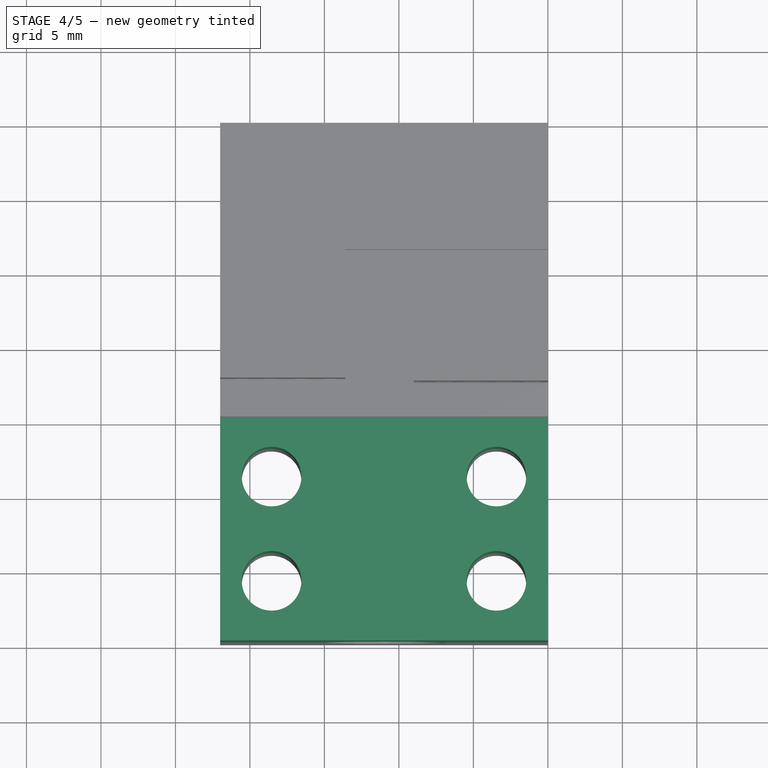
[diagram: stage 4 of 5 — top view after this stage's code; geometry added in this stage tinted green]
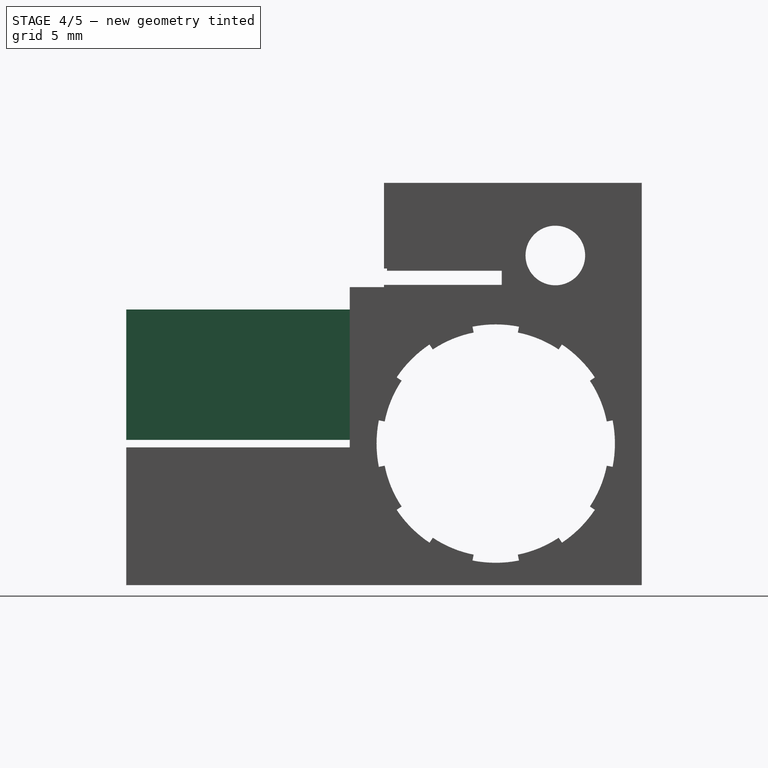
[diagram: stage 4 of 5 — right view after this stage's code; geometry added in this stage tinted green]
FEATURE [PartDesign::Body] Body009  label="BeltTightener"
  Group = -> [ShapeBinder002,ShapeBinder003,ShapeBinder004,Sketch027,Pad012,Sketch028,DatumPlane014,Pocket012]
  Origin = -> Origin018
  Tip = -> Pocket012
FEATURE [PartDesign::ShapeBinder] ShapeBinder007  label="Common_Basepart_ShapeBinder_AHX"
  Placement = pos=(0,0,0) rot=(0.57735,0.57735,0.57735;2.0944rad)
  Support = -> [Sketch]
  TraceSupport = false
FEATURE [PartDesign::Plane] DatumPlane015  label="Common_Basepart_Front_DatumPlane_AHX"
  AttachmentOffset = pos=(0,0,9.8) rot=(0,0,1;0rad)
  Length = 25.0596
  MapMode = 4
  Placement = pos=(-1.1081e-12,-9.8,1.106e-12) rot=(0.57735,0.57735,-0.57735;2.0944rad)
  ResizeMode = 0
  Support = -> [ShapeBinder007]
  Width = 37.0596
  expr: AttachmentOffset.Base.z = Spreadsheet.B2 / 2
FEATURE [Sketcher::SketchObject] Sketch039  label="AHX_Main_Sketch"
  MapMode = 5
  Placement = pos=(-1.1081e-12,-9.8,1.106e-12) rot=(0.57735,0.57735,-0.57735;2.0944rad)
  Support = -> [DatumPlane015]
  expr: Constraints[9] = Spreadsheet.B35
  expr: Constraints[11] = Spreadsheet.B34 / 2
  expr: Constraints[15] = Spreadsheet.B8 / 2
  expr: Constraints.width = Spreadsheet.B8
  sketch-geometry (6):
    g0: LineSegment StartX=-9 StartY=0 StartZ=0 EndX=-0.25 EndY=0 EndZ=0
    g1: LineSegment StartX=-0.25 StartY=0 StartZ=0 EndX=-0.25 EndY=-6.90763 EndZ=0
    g2: LineSegment StartX=-0.25 StartY=-22 StartZ=0 EndX=-9 EndY=-22 EndZ=0
    g3: LineSegment StartX=-9 StartY=-22 StartZ=0 EndX=-9 EndY=0 EndZ=0
    g4: ArcOfCircle CenterX=0 CenterY=-11 CenterZ=0 NormalX=0 NormalY=0 NormalZ=1 AngleXU=0 Radius=4.1 StartAngle=1.63181 EndAngle=4.65138
    g5: LineSegment StartX=-0.25 StartY=-15.0924 StartZ=0 EndX=-0.25 EndY=-22 EndZ=0
  constraints (16):
    c: Coincident(g0,g1)
    c: Coincident(g5,g2)
    c: Coincident(g2,g3)
    c: Coincident(g3,g0)
    c: Horizontal(g0)
    c: Horizontal(g2)
    c: Vertical(g1)
    c: Vertical(g3)
    c: DistanceY(g3,g3) = 22  'width'
    c: DistanceX(g0,g-1) = 0.25
    c: PointOnObject(g4,g-2)
    c: Radius(g4) = 4.1
    c: Coincident(g1,g4)
    c: Coincident(g5,g4)
    c: Tangent(g1,g5)
    c: DistanceY(g4,g-1) = 11
FEATURE [PartDesign::Pad] Pad017  label="AHX_Main_Pad"
  Length = 15
  Length2 = 100
  Placement = pos=(-1.105e-12,-9.8,1.105e-12) rot=(0.57735,0.57735,-0.57735;2.0944rad)
  Profile = -> Sketch039
  Type = 0
  expr: Length = Spreadsheet.B37
FEATURE [Sketcher::SketchObject] Sketch040  label="AHX_Screwholes_Sketch"
  MapMode = 5
  expr: Constraints[30] = Spreadsheet.B40
  expr: Constraints[31] = Spreadsheet.B41
  expr: Constraints[28] = Spreadsheet.B37
  expr: Constraints[29] = Spreadsheet.B39 / 2
  sketch-geometry (14):
    g0: LineSegment [constr] StartX=-22 StartY=-9.8 StartZ=0 EndX=-15.0924 EndY=-9.8 EndZ=0
    g1: LineSegment [constr] StartX=-15.0924 StartY=-9.8 StartZ=0 EndX=-15.0924 EndY=-24.8 EndZ=0
    g2: LineSegment [constr] StartX=-15.0924 StartY=-24.8 StartZ=0 EndX=-22 EndY=-24.8 EndZ=0
    g3: LineSegment [constr] StartX=-22 StartY=-24.8 StartZ=0 EndX=-22 EndY=-9.8 EndZ=0
    g4: LineSegment [constr] StartX=-6.90763 StartY=-9.8 StartZ=0 EndX=-1.136e-12 EndY=-9.8 EndZ=0
    g5: LineSegment [constr] StartX=-1.136e-12 StartY=-9.8 StartZ=0 EndX=-1.136e-12 EndY=-24.8 EndZ=0
    g6: LineSegment [constr] StartX=-1.136e-12 StartY=-24.8 StartZ=0 EndX=-6.90763 EndY=-24.8 EndZ=0
    g7: LineSegment [constr] StartX=-6.90763 StartY=-24.8 StartZ=0 EndX=-6.90763 EndY=-9.8 EndZ=0
    g8: LineSegment [constr] StartX=-3.45381 StartY=-24.8 StartZ=0 EndX=-3.45381 EndY=-9.8 EndZ=0
    g9: LineSegment [constr] StartX=-11 StartY=-24.8 StartZ=0 EndX=-11 EndY=-9.8 EndZ=0
    g10: Circle CenterX=-18.5462 CenterY=-20.8 CenterZ=0 NormalX=0 NormalY=0 NormalZ=1 AngleXU=0 Radius=2
    g11: Circle CenterX=-18.5462 CenterY=-13.8 CenterZ=0 NormalX=0 NormalY=0 NormalZ=1 AngleXU=0 Radius=2
    g12: Circle CenterX=-3.45381 CenterY=-13.8 CenterZ=0 NormalX=0 NormalY=0 NormalZ=1 AngleXU=0 Radius=2
    g13: Circle CenterX=-3.45381 CenterY=-20.8 CenterZ=0 NormalX=0 NormalY=0 NormalZ=1 AngleXU=0 Radius=2
  constraints (32):
    c: Coincident(g0,g1)
    c: Coincident(g1,g2)
    c: Coincident(g2,g3)
    c: Coincident(g3,g0)
    c: Horizontal(g2)
    c: Vertical(g1)
    c: Vertical(g3)
    c: Coincident(g4,g5)
    c: Coincident(g5,g6)
    c: Coincident(g6,g7)
    c: Coincident(g7,g4)
    c: Horizontal(g6)
    c: Vertical(g5)
    c: Vertical(g7)
    c: PointOnObject(g6,g2)
    c: PointOnObject(g8,g6)
    c: PointOnObject(g8,g4)
    c: Symmetric(g6,g5,g8)
    c: PointOnObject(g9,g2)
    c: PointOnObject(g9,g0)
    c: Symmetric(g2,g5,g9)
    c: PointOnObject(g12,g8)
    c: PointOnObject(g13,g8)
    c: Symmetric(g13,g10,g9)
    c: Symmetric(g11,g12,g9)
    c: Equal(g10,g11)
    c: Equal(g10,g12)
    c: Equal(g10,g13)
    c: DistanceY(g3,g3) = 15
    c: Radius(g11) = 2
    c: DistanceY(g11,g0) = 4
    c: DistanceY(g2,g10) = 4
FEATURE [PartDesign::Pocket] Pocket019  label="AHX_Screwholes_Pocket"
  BaseFeature = -> Pad017
  Length = 5
  Length2 = 100
  Placement = pos=(-1.105e-12,-9.8,1.105e-12) rot=(0.57735,0.57735,-0.57735;2.0944rad)
  Profile = -> Sketch040
  Reversed = true
  Type = 1
FEATURE [PartDesign::Body] Body  label="Common_Basepart_Axisholder"
  Group = -> [DatumPlane,Sketch,Pad,Sketch002,Sketch003,Pad001,Pocket,Pad002,Sketch004,Sketch005,Pocket001,Sketch006,Pocket002,PolarPattern,DatumPlane001,Sketch010,Pad004,Sketch041,Pocket020]
  Origin = -> Origin
  Tip = -> Pocket020
FEATURE [App::DocumentObjectGroup] Group  label="Design"
  Group = -> [Body,Body014,Body012,Body009,Body013,Spreadsheet]
FEATURE [PartDesign::FeatureBase] Clone001
  BaseFeature = -> Body
FEATURE [PartDesign::Body] Body016
  BaseFeature = -> Body
  Group = -> [Clone001]
  Origin = -> Origin030
  Tip = -> Clone001
FEATURE [App::Part] Part  label="Axisholder_X"
  Group = -> [Body015,Body016,Body019,Body021]
  Origin = -> Origin028
FEATURE [PartDesign::FeatureBase] Clone002
  BaseFeature = -> Body
FEATURE [PartDesign::Body] Body023
  Group = -> [Clone008]
  Origin = -> Origin038
  Tip = -> Clone008
FEATURE [PartDesign::FeatureBase] Clone009
  BaseFeature = -> Body016
FEATURE [App::Part] Part002  label="Printable_Axisholder_X"
  Group = -> [Body023,Body024,Fusion]
  Origin = -> Origin040
  Placement = pos=(29.4,0,0) rot=(0,1,0;4.71239rad)
  expr: Placement.Base.x = Spreadsheet.B2 * 1.5
FEATURE [PartDesign::FeatureBase] Clone010
  BaseFeature = -> Body017
FEATURE [PartDesign::Body] Body026
  Group = -> [Clone011]
  Origin = -> Origin042
  Tip = -> Clone011
FEATURE [Part::MultiFuse] Fusion001  label="Printable_Axisholder_Y_Fusion"
  Shapes = -> [Body025,Body026]
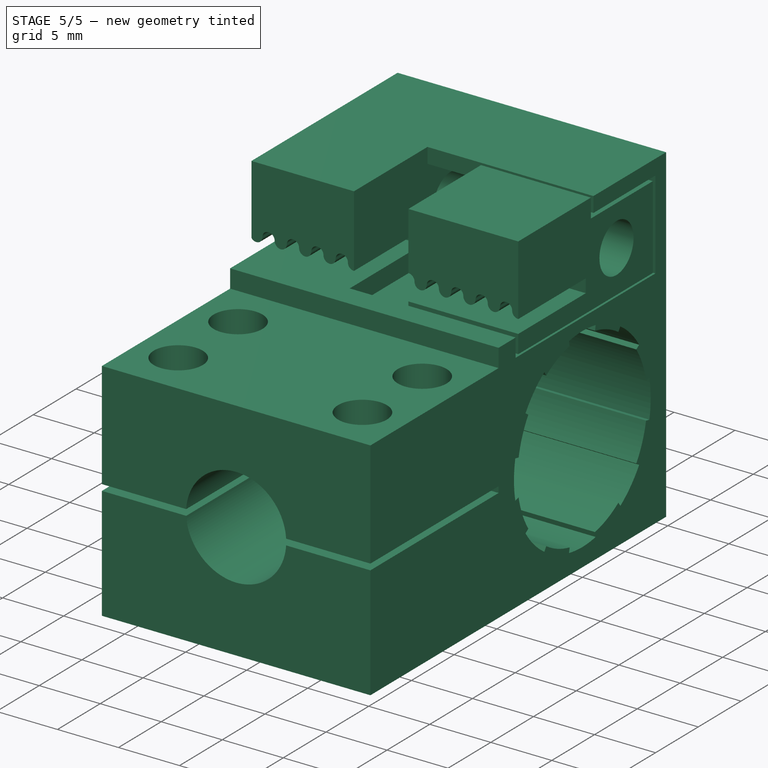
[diagram: stage 5 of 5 — iso view after this stage's code; geometry added in this stage tinted green]
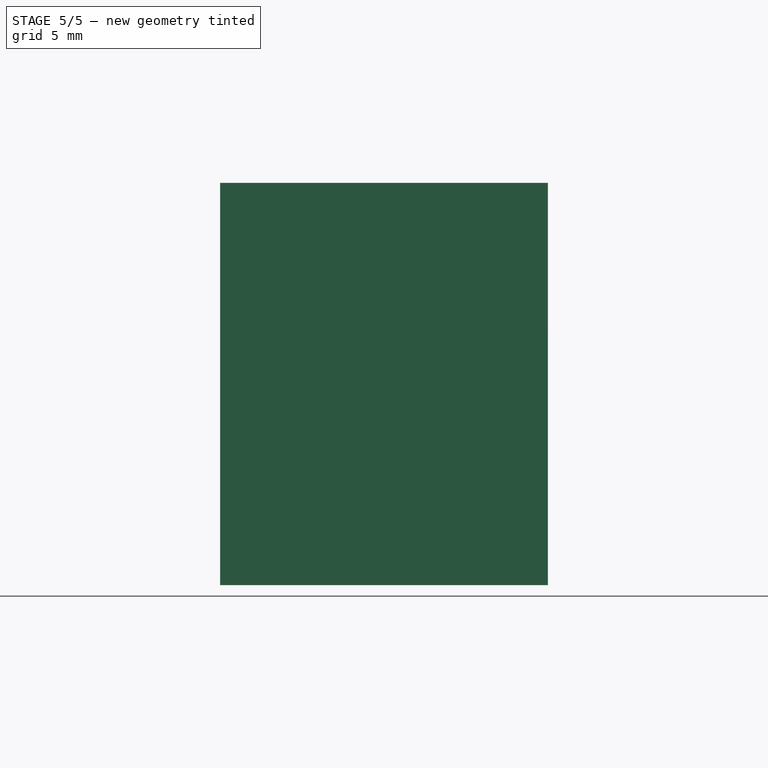
[diagram: stage 5 of 5 — front view after this stage's code; geometry added in this stage tinted green]
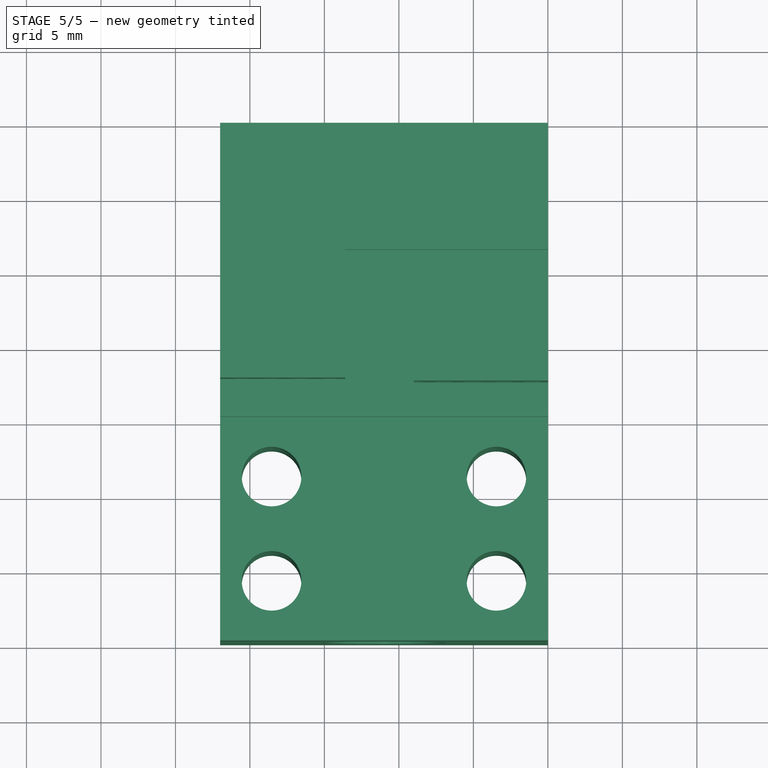
[diagram: stage 5 of 5 — top view after this stage's code; geometry added in this stage tinted green]
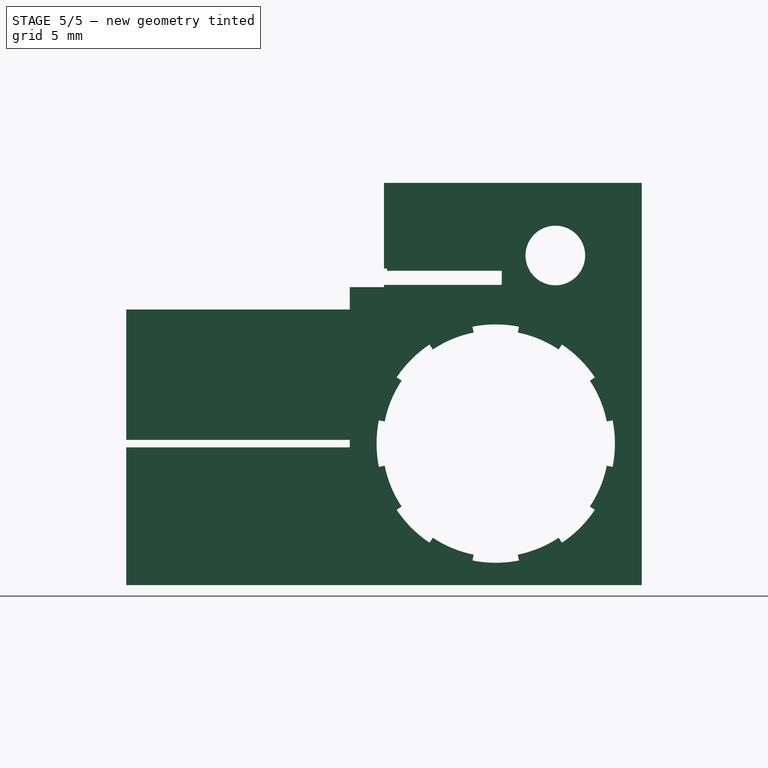
[diagram: stage 5 of 5 — right view after this stage's code; geometry added in this stage tinted green]
FEATURE [PartDesign::Body] Body014  label="AxisHolder_X"
  Group = -> [ShapeBinder007,DatumPlane015,Sketch039,Pad017,Sketch040,Pocket019]
  Origin = -> Origin027
  Tip = -> Pocket019
FEATURE [PartDesign::FeatureBase] Clone
  BaseFeature = -> Body014
FEATURE [PartDesign::Body] Body018
  BaseFeature = -> Body012
  Group = -> [Clone003]
  Origin = -> Origin033
  Tip = -> Clone003
FEATURE [PartDesign::FeatureBase] Clone004
  BaseFeature = -> Body009
FEATURE [PartDesign::Body] Body019
  BaseFeature = -> Body009
  Group = -> [Clone004]
  Origin = -> Origin034
  Tip = -> Clone004
FEATURE [PartDesign::FeatureBase] Clone005
  BaseFeature = -> Body009
FEATURE [PartDesign::Body] Body020
  BaseFeature = -> Body009
  Group = -> [Clone005]
  Origin = -> Origin035
  Tip = -> Clone005
FEATURE [PartDesign::FeatureBase] Clone006
  BaseFeature = -> Body013
FEATURE [PartDesign::Body] Body021
  BaseFeature = -> Body013
  Group = -> [Clone006]
  Origin = -> Origin036
  Placement = pos=(0,0,0.25) rot=(0,0,1;0rad)
  Tip = -> Clone006
  expr: Placement.Base.z = Spreadsheet.B35
FEATURE [PartDesign::FeatureBase] Clone007
  BaseFeature = -> Body013
FEATURE [PartDesign::Body] Body017
  BaseFeature = -> Body
  Group = -> [Clone002]
  Origin = -> Origin032
  Tip = -> Clone002
FEATURE [App::Part] Part001  label="Axisholder_Y"
  Group = -> [Body017,Body018,Body020,Body022]
  Origin = -> Origin031
  Placement = pos=(27.5,0,0) rot=(0,0,1;0rad)
  expr: Placement.Base.x = Spreadsheet.B8 * 1.25
FEATURE [App::DocumentObjectGroup] Gruppe  label="Assemblies"
  Group = -> [Part,Part001]
FEATURE [PartDesign::FeatureBase] Clone008
  BaseFeature = -> Body015
FEATURE [PartDesign::Body] Body024
  Group = -> [Clone009]
  Origin = -> Origin039
  Tip = -> Clone009
FEATURE [Part::MultiFuse] Fusion  label="Printable_Axisholder_X_Fusion"
  Shapes = -> [Body024,Body023]
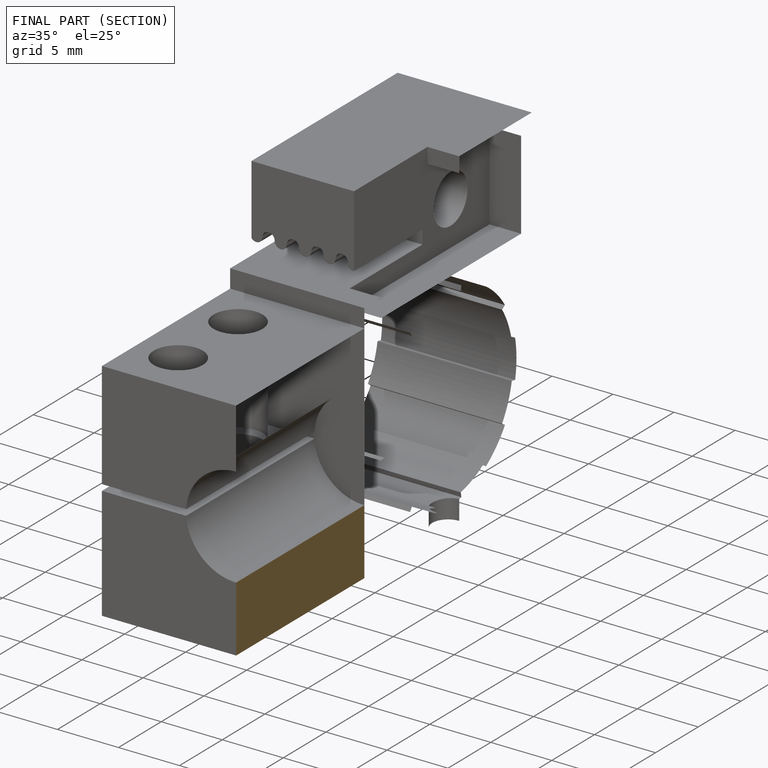
[diagram: finished part — half-section view (interior)]
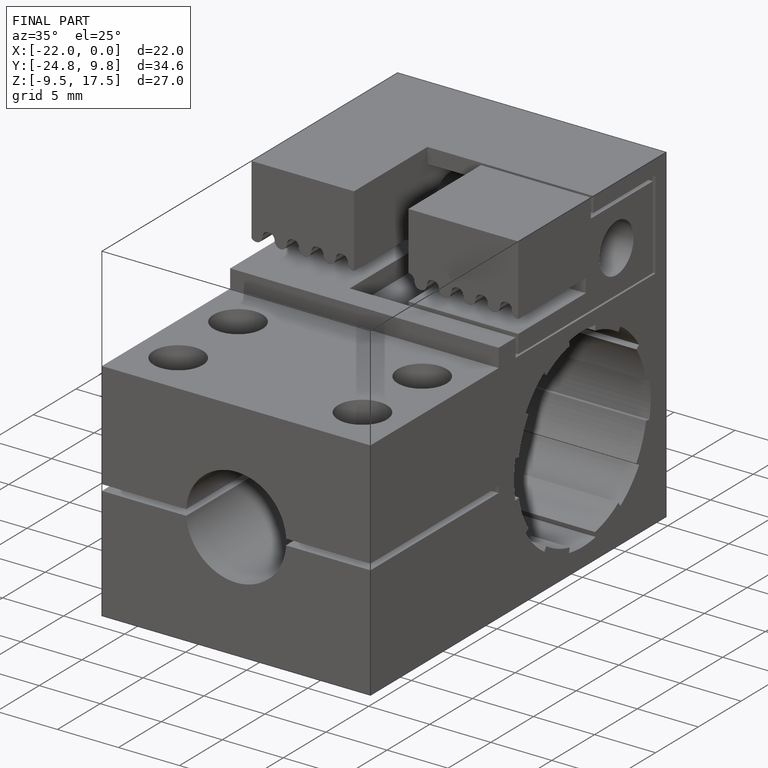
[diagram: finished part — iso view with bounding-box wireframe]
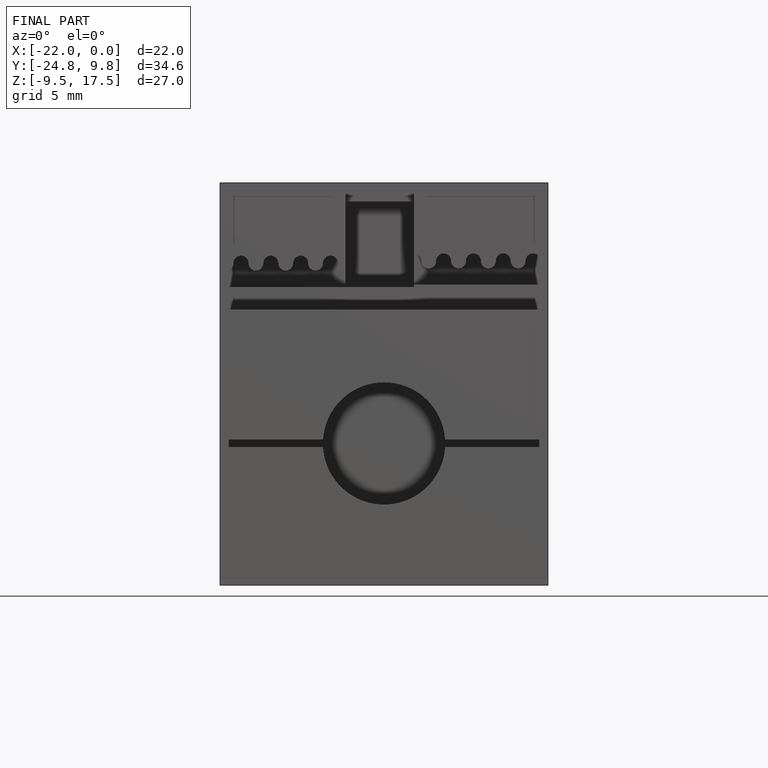
[diagram: finished part — front view with bounding-box wireframe]
